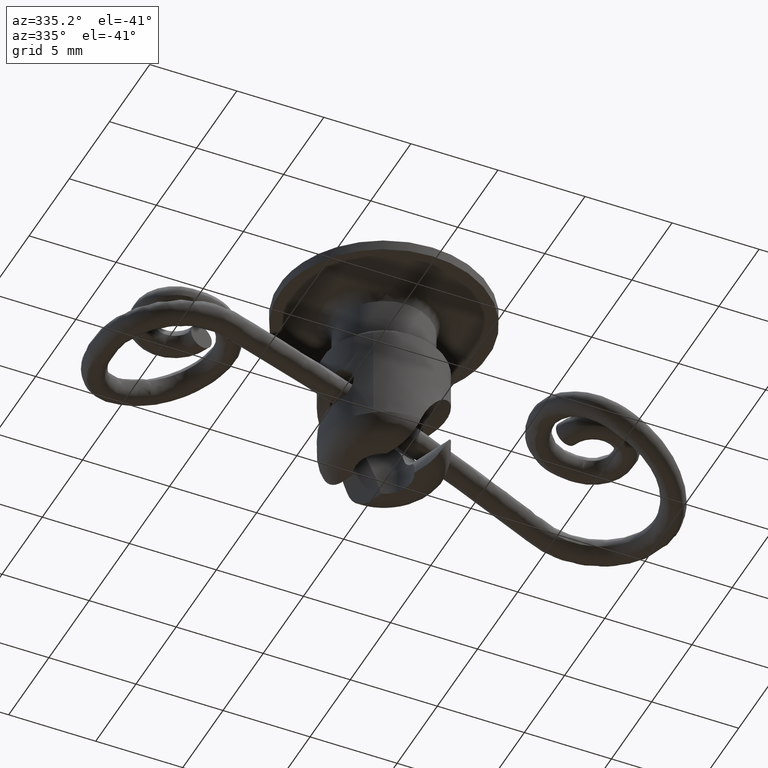
[diagram: clean part render]
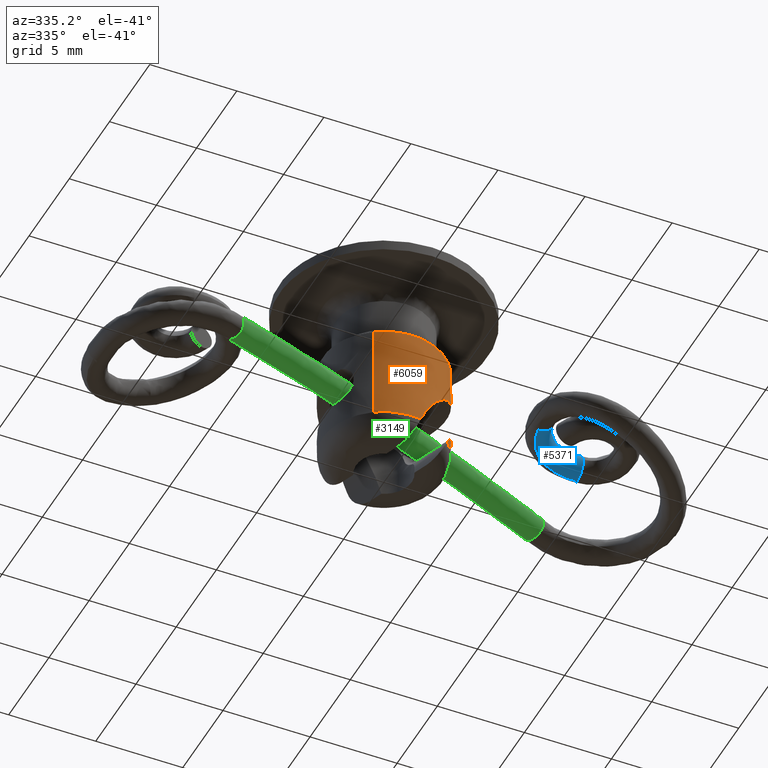
[diagram: same view with three faces highlighted in distinct colors, each labeled with its STEP entity id]
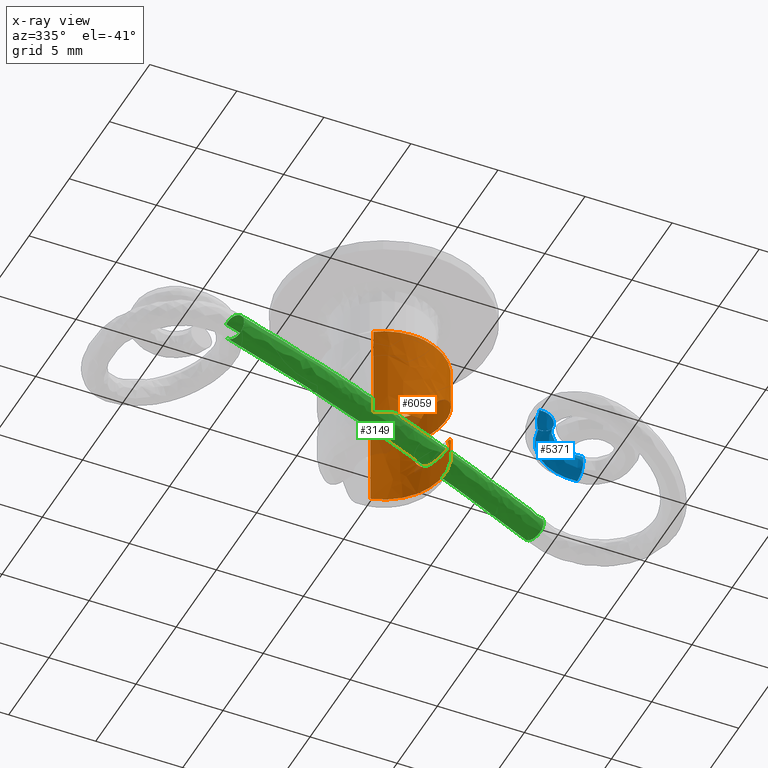
[diagram: x-ray of the same camera — body ghosted, the three highlighted faces saturated]
A machine part, auxiliary view with three faces highlighted in distinct colors.
The next image is the same camera in x-ray (body ghosted, the three faces saturated) — at least one of them is partly hidden behind the body in this view.
Their STEP definitions:

[orange] entity #6059 — the highlighted face is a freeform B-spline surface patch.
#5832=CARTESIAN_POINT('',(-3.408515836683732,0.794996810384028,3.390328074999983));
#5833=CARTESIAN_POINT('',(-3.263399545498517,1.417176887341419,3.390328074999983));
#5834=CARTESIAN_POINT('',(-2.907824455280770,1.947962287806331,3.390328074999983));
#5835=CARTESIAN_POINT('',(-0.959862167474439,4.855786743087101,3.390328074999983));
#5836=CARTESIAN_POINT('',(1.947962287806331,2.907824455280770,3.390328074999983));
#5837=CARTESIAN_POINT('',(4.855786743087101,0.959862167474439,3.390328074999983));
#5838=CARTESIAN_POINT('',(2.907824455280770,-1.947962287806331,3.390328074999983));
#5839=CARTESIAN_POINT('',(-3.408515836683732,0.794996810384028,-2.440643826875002));
#5840=CARTESIAN_POINT('',(-3.263399545498517,1.417176887341419,-2.440643826875002));
#5841=CARTESIAN_POINT('',(-2.907824455280770,1.947962287806331,-2.440643826875002));
#5842=CARTESIAN_POINT('',(-0.959862167474439,4.855786743087101,-2.440643826875002));
#5843=CARTESIAN_POINT('',(1.947962287806331,2.907824455280770,-2.440643826875001));
#5844=CARTESIAN_POINT('',(4.855786743087101,0.959862167474439,-2.440643826875000));
#5845=CARTESIAN_POINT('',(2.907824455280770,-1.947962287806331,-2.440643826875001));
#5853=(BOUNDED_SURFACE()B_SPLINE_SURFACE(2,1,((#5832,#5839),(#5833,#5840),(#5834,#5841),(#5835,#5842),(#5836,#5843),(#5837,#5844),(#5838,#5845)),.UNSPECIFIED.,.F.,.F.,.U.)B_SPLINE_SURFACE_WITH_KNOTS((3,2,2,3),(2,2),(0.0,1.391757577381336,7.190747483136899,12.989737388892459),(0.0,5.830971901874984),.UNSPECIFIED.)GEOMETRIC_REPRESENTATION_ITEM()RATIONAL_B_SPLINE_SURFACE(((0.893152553776853,0.893152553776853),(0.929705627484771,0.929705627484771),(1.0,1.0),(0.707106781186548,0.707106781186548),(1.0,1.0),(0.707106781186548,0.707106781186548),(1.0,1.0)))REPRESENTATION_ITEM('')SURFACE());
#5854=CARTESIAN_POINT('',(-3.408515846239265,0.794996812636851,3.251577999999965));
#5855=VERTEX_POINT('',#5854);
#5856=CARTESIAN_POINT('',(3.500000039059999,2.046831E-016,3.251577999999983));
#5857=VERTEX_POINT('',#5856);
#5858=CARTESIAN_POINT('',(-3.408515846239265,0.794996812636851,3.251577999999965));
#5859=CARTESIAN_POINT('',(-2.777605207691879,3.500000039269895,3.251577999999964));
#5860=CARTESIAN_POINT('',(0.0,3.500000039269895,3.251577999999965));
#5861=CARTESIAN_POINT('',(3.500000039269896,3.500000039269896,3.251577999999965));
#5862=CARTESIAN_POINT('',(3.500000039059999,2.046831E-016,3.251577999999983));
#5870=(BOUNDED_CURVE()B_SPLINE_CURVE(2,(#5858,#5859,#5860,#5861,#5862),.UNSPECIFIED.,.F.,.U.)B_SPLINE_CURVE_WITH_KNOTS((3,2,3),(0.038834074144333,0.250000000000000,0.500000000000000),.UNSPECIFIED.)CURVE()GEOMETRIC_REPRESENTATION_ITEM()RATIONAL_B_SPLINE_CURVE((0.923140758979486,0.752603729089643,1.0,0.707106781186548,1.0))REPRESENTATION_ITEM(''));
#5871=EDGE_CURVE('',#5855,#5857,#5870,.T.);
#5872=ORIENTED_EDGE('',*,*,#5871,.T.);
#5873=CARTESIAN_POINT('',(2.907825412374815,-1.947960876613850,3.251577999999967));
#5874=VERTEX_POINT('',#5873);
#5875=CARTESIAN_POINT('',(3.500000039059999,2.046831E-016,3.251577999999983));
#5876=CARTESIAN_POINT('',(3.500000039131653,-1.063990148705424,3.251577999999977));
#5877=CARTESIAN_POINT('',(2.907825412374815,-1.947960876613850,3.251577999999967));
#5885=(BOUNDED_CURVE()B_SPLINE_CURVE(2,(#5875,#5876,#5877),.UNSPECIFIED.,.F.,.U.)B_SPLINE_CURVE_WITH_KNOTS((3,3),(0.500000000000000,0.595459053685840),.UNSPECIFIED.)CURVE()GEOMETRIC_REPRESENTATION_ITEM()RATIONAL_B_SPLINE_CURVE((1.0,0.888162762004273,0.861732539255827))REPRESENTATION_ITEM(''));
#5886=EDGE_CURVE('',#5857,#5874,#5885,.T.);
#5887=ORIENTED_EDGE('',*,*,#5886,.T.);
#5888=CARTESIAN_POINT('',(2.907823712721256,-1.947963380968242,-2.298425000000000));
#5889=VERTEX_POINT('',#5888);
#5890=CARTESIAN_POINT('',(2.907825412374815,-1.947960876613850,3.251577999999967));
#5891=CARTESIAN_POINT('',(2.907823712721256,-1.947963380968242,-2.298425000000000));
#5892=QUASI_UNIFORM_CURVE('',1,(#5890,#5891),.UNSPECIFIED.,.F.,.U.);
#5893=EDGE_CURVE('',#5874,#5889,#5892,.T.);
#5894=ORIENTED_EDGE('',*,*,#5893,.T.);
#5895=CARTESIAN_POINT('',(3.459897316747310,0.528309279692622,-2.298425000000000));
#5896=VERTEX_POINT('',#5895);
#5897=CARTESIAN_POINT('',(3.459897316747310,0.528309279692622,-2.298425000000000));
#5898=CARTESIAN_POINT('',(3.665345662768366,-0.817171948561412,-2.298425000000000));
#5899=CARTESIAN_POINT('',(2.907823712721255,-1.947963380968242,-2.298425000000000));
#5907=(BOUNDED_CURVE()B_SPLINE_CURVE(2,(#5897,#5898,#5899),.UNSPECIFIED.,.F.,.U.)B_SPLINE_CURVE_WITH_KNOTS((3,3),(0.0,0.297432083567878),.UNSPECIFIED.)CURVE()GEOMETRIC_REPRESENTATION_ITEM()RATIONAL_B_SPLINE_CURVE((1.0,0.889178765330573,0.910204693586316))REPRESENTATION_ITEM(''));
#5908=EDGE_CURVE('',#5896,#5889,#5907,.T.);
#5909=ORIENTED_EDGE('',*,*,#5908,.F.);
#5910=CARTESIAN_POINT('',(-1.254288176771206,3.267531378127195,1.351574999995246));
#5911=VERTEX_POINT('',#5910);
#5912=CARTESIAN_POINT('',(-1.254288176771206,3.267531378127195,1.351574999995246));
#5913=CARTESIAN_POINT('',(-1.101160005406765,3.326311794487662,1.351574998837264));
#5914=CARTESIAN_POINT('',(-0.945762923950141,3.373675377215122,1.349288494566302));
#5915=CARTESIAN_POINT('',(-0.630633866917499,3.446513308409384,1.339913747538645));
#5916=CARTESIAN_POINT('',(-0.470901100661854,3.471984132491330,1.332827274565041));
#5917=CARTESIAN_POINT('',(-0.228032611613191,3.493509216653556,1.317601414292670));
#5918=CARTESIAN_POINT('',(-0.146192181078326,3.497894007021392,1.311721623021134));
#5919=CARTESIAN_POINT('',(0.016684825331217,3.500907918636005,1.298294048865736));
#5920=CARTESIAN_POINT('',(0.097661381558418,3.499565850793191,1.290759077124677));
#5921=CARTESIAN_POINT('',(0.339192328174756,3.487254465925414,1.265360531103398));
#5922=CARTESIAN_POINT('',(0.498356029403914,3.468031572046396,1.244733748760221));
#5923=CARTESIAN_POINT('',(0.734116231528175,3.423079591665780,1.206421926317352));
#5924=CARTESIAN_POINT('',(0.812203412832257,3.405401099469859,1.192415497843184));
#5925=CARTESIAN_POINT('',(0.967319985446281,3.364628222826869,1.161525164726331));
#5926=CARTESIAN_POINT('',(1.044455501968755,3.341469688333355,1.144598555183151));
#5927=CARTESIAN_POINT('',(1.270181629063231,3.265251309077173,1.089838312734105));
#5928=CARTESIAN_POINT('',(1.414461919028028,3.205160989796881,1.047795469298972));
#5929=CARTESIAN_POINT('',(1.690751086098153,3.068406794372949,0.950297460754401));
#5930=CARTESIAN_POINT('',(1.822783533150525,2.991714083594022,0.894834410800318));
#5931=CARTESIAN_POINT('',(2.074162398018134,2.823250487177357,0.767670321400395));
#5932=CARTESIAN_POINT('',(2.190286065450039,2.733666603910849,0.697587030664217));
#5933=CARTESIAN_POINT('',(2.405163610616871,2.546659411072964,0.543378092234245));
#5934=CARTESIAN_POINT('',(2.503908324413362,2.449224044822806,0.459254466628814));
#5935=CARTESIAN_POINT('',(2.639930954665946,2.298984229476701,0.321658217676691));
#5936=CARTESIAN_POINT('',(2.683294462201880,2.248148310073917,0.273809076138016));
#5937=CARTESIAN_POINT('',(2.765058072308654,2.146786866862252,0.175531771712936));
#5938=CARTESIAN_POINT('',(2.803617932975777,2.096094359954361,0.124955630713278));
#5939=CARTESIAN_POINT('',(2.912899965180591,1.944364600649928,-0.031085920722878));
#5940=CARTESIAN_POINT('',(2.977240711307082,1.843680462941251,-0.140859363842419));
#5941=CARTESIAN_POINT('',(3.091414319336658,1.645076718179377,-0.372018921680366));
#5942=CARTESIAN_POINT('',(3.141371004931514,1.546772127010131,-0.493977660713145));
#5943=CARTESIAN_POINT('',(3.270257197035197,1.264231255342642,-0.869766668325979));
#5944=CARTESIAN_POINT('',(3.329685867914584,1.090532520732842,-1.135235191100540));
#5945=CARTESIAN_POINT('',(3.394380702427332,0.857144701619205,-1.555710809341995));
#5946=CARTESIAN_POINT('',(3.411800479059488,0.783882764392442,-1.699601494543263));
#5947=CARTESIAN_POINT('',(3.440294643041646,0.647477772808494,-1.995074335843939));
#5948=CARTESIAN_POINT('',(3.451255752075076,0.584902884180227,-2.145430863998851));
#5949=CARTESIAN_POINT('',(3.459897316747310,0.528309279692622,-2.298425000000000));
#5950=B_SPLINE_CURVE_WITH_KNOTS('',3,(#5912,#5913,#5914,#5915,#5916,#5917,#5918,#5919,#5920,#5921,#5922,#5923,#5924,#5925,#5926,#5927,#5928,#5929,#5930,#5931,#5932,#5933,#5934,#5935,#5936,#5937,#5938,#5939,#5940,#5941,#5942,#5943,#5944,#5945,#5946,#5947,#5948,#5949),.UNSPECIFIED.,.F.,.U.,(4,2,2,2,2,2,2,2,2,2,2,2,2,2,2,2,2,2,4),(0.0,0.062500000000000,0.125000000000000,0.156250000000000,0.187500000000000,0.250000000000000,0.281250000000000,0.312500000000000,0.375000000000000,0.437500000000000,0.500000000000000,0.562500000000000,0.593750000000000,0.625000000000000,0.687500000000000,0.750000000000000,0.875000000000000,0.937500000000000,1.0),.UNSPECIFIED.);
#5951=EDGE_CURVE('',#5911,#5896,#5950,.T.);
#5952=ORIENTED_EDGE('',*,*,#5951,.F.);
#5953=CARTESIAN_POINT('',(-1.254288176771760,3.267531378128635,-0.748424999979508));
#5954=VERTEX_POINT('',#5953);
#5955=CARTESIAN_POINT('',(-1.254288176771206,3.267531378127195,1.351574999995246));
#5956=CARTESIAN_POINT('',(-1.318640299711025,3.242828904728114,1.351574999998268));
#5957=CARTESIAN_POINT('',(-1.383250974586402,3.215771584575151,1.344614387519887));
#5958=CARTESIAN_POINT('',(-1.506396954860101,3.159958600558465,1.317551416516898));
#5959=CARTESIAN_POINT('',(-1.565593729016680,3.130981213496073,1.297553653347578));
#5960=CARTESIAN_POINT('',(-1.650975952180062,3.086310139844504,1.257724716383986));
#5961=CARTESIAN_POINT('',(-1.678753671642143,3.071272891539915,1.242826640704749));
#5962=CARTESIAN_POINT('',(-1.732041841991305,3.041539432910789,1.210385216263431));
#5963=CARTESIAN_POINT('',(-1.783357944218259,3.011994068942268,1.175167036653601));
#5964=CARTESIAN_POINT('',(-1.830909980153130,2.983034484318199,1.134471816499891));
#5965=CARTESIAN_POINT('',(-1.876617930935489,2.954493396734419,1.090990597774523));
#5966=CARTESIAN_POINT('',(-1.898643808134227,2.940368242062184,1.067731898670564));
#5967=CARTESIAN_POINT('',(-1.960784572628020,2.899616920178816,0.995007552488599));
#5968=CARTESIAN_POINT('',(-1.997313065196738,2.874417824679645,0.942418069378176));
#5969=CARTESIAN_POINT('',(-2.061201929522494,2.828954562550342,0.828988281016511));
#5970=CARTESIAN_POINT('',(-2.088680228950250,2.808587258778213,0.767521782673829));
#5971=CARTESIAN_POINT('',(-2.132297230026054,2.775618131480302,0.641013959846587));
#5972=CARTESIAN_POINT('',(-2.148792456446234,2.762769053247285,0.575543322740722));
#5973=CARTESIAN_POINT('',(-2.165556070135160,2.749621333165620,0.473869182759542));
#5974=CARTESIAN_POINT('',(-2.169803212607415,2.746264165357989,0.439234258750618));
#5975=CARTESIAN_POINT('',(-2.175393391017462,2.741838150162845,0.370340765957732));
#5976=CARTESIAN_POINT('',(-2.178156516593197,2.739640120674820,0.301511781085004));
#5977=CARTESIAN_POINT('',(-2.175389917238075,2.741840883420516,0.232809426688201));
#5978=CARTESIAN_POINT('',(-2.169827390747218,2.746245039391130,0.164170869290252));
#5979=CARTESIAN_POINT('',(-2.165624459311289,2.749567543152300,0.129744173098334));
#5980=CARTESIAN_POINT('',(-2.148793984299284,2.762768157699981,0.027519411720855));
#5981=CARTESIAN_POINT('',(-2.132225849179947,2.775673270947027,-0.038123504226504));
#5982=CARTESIAN_POINT('',(-2.099475276291152,2.800426924964453,-0.133035132337098));
#5983=CARTESIAN_POINT('',(-2.087231015792193,2.809582358412294,-0.164075858512501));
#5984=CARTESIAN_POINT('',(-2.059973358337012,2.829628262674840,-0.224946977636477));
#5985=CARTESIAN_POINT('',(-2.045080296908825,2.840428223134019,-0.254484294229986));
#5986=CARTESIAN_POINT('',(-1.997069258926276,2.874588250348522,-0.339653954551944));
#5987=CARTESIAN_POINT('',(-1.960488800417637,2.899817283224345,-0.392254239855946));
#5988=CARTESIAN_POINT('',(-1.898315917340577,2.940580033635757,-0.464940073162480));
#5989=CARTESIAN_POINT('',(-1.876274716174536,2.954711451940570,-0.488190309709255));
#5990=CARTESIAN_POINT('',(-1.830548118104566,2.983256636980536,-0.531642471626592));
#5991=CARTESIAN_POINT('',(-1.806774993222981,2.997730444536423,-0.551964188713668));
#5992=CARTESIAN_POINT('',(-1.732677365752857,3.041565963581875,-0.608800311456632));
#5993=CARTESIAN_POINT('',(-1.679505055045372,3.071386452818583,-0.641275901954966));
#5994=CARTESIAN_POINT('',(-1.565317319694887,3.131123386445141,-0.694523187942838));
#5995=CARTESIAN_POINT('',(-1.506098569886577,3.160096929461241,-0.714477140384755));
#5996=CARTESIAN_POINT('',(-1.413986631402267,3.201839828247238,-0.734704725707612));
#5997=CARTESIAN_POINT('',(-1.382732750924972,3.215468968139409,-0.739817952053260));
#5998=CARTESIAN_POINT('',(-1.319075315955919,3.242102844819061,-0.746689015856274));
#5999=CARTESIAN_POINT('',(-1.286590396207081,3.255131713908407,-0.748425000002721));
#6000=CARTESIAN_POINT('',(-1.254288176771760,3.267531378128635,-0.748424999979508));
#6001=B_SPLINE_CURVE_WITH_KNOTS('',3,(#5955,#5956,#5957,#5958,#5959,#5960,#5961,#5962,#5963,#5964,#5965,#5966,#5967,#5968,#5969,#5970,#5971,#5972,#5973,#5974,#5975,#5976,#5977,#5978,#5979,#5980,#5981,#5982,#5983,#5984,#5985,#5986,#5987,#5988,#5989,#5990,#5991,#5992,#5993,#5994,#5995,#5996,#5997,#5998,#5999,#6000),.UNSPECIFIED.,.F.,.U.,(4,2,2,2,1,2,2,2,2,2,2,1,2,2,2,2,2,2,2,2,2,2,2,4),(0.0,0.062500000000000,0.125000000000000,0.156250000000000,0.187500000000000,0.218750000000000,0.249999999999999,0.312499999999999,0.374999999999999,0.437499999999999,0.468749999999999,0.499999999999999,0.531249999999999,0.562499999999999,0.624999999999999,0.656249999999999,0.687499999999999,0.749999999999999,0.781249999999999,0.812499999999999,0.874999999999999,0.937500000000000,0.968750000000000,1.0),.UNSPECIFIED.);
#6002=EDGE_CURVE('',#5911,#5954,#6001,.T.);
#6003=ORIENTED_EDGE('',*,*,#6002,.T.);
#6004=CARTESIAN_POINT('',(2.408393904069760,2.539613908222965,-2.298424999999550));
#6005=VERTEX_POINT('',#6004);
#6006=CARTESIAN_POINT('',(-1.254288176771760,3.267531378128635,-0.748424999979508));
#6007=CARTESIAN_POINT('',(-1.080808516791880,3.334124001501087,-0.748425001939531));
#6008=CARTESIAN_POINT('',(-0.904432228796500,3.386078131053088,-0.752768340559637));
#6009=CARTESIAN_POINT('',(-0.546197757697933,3.461963427820624,-0.770973188020519));
#6010=CARTESIAN_POINT('',(-0.364154793346326,3.485897916126325,-0.784838761042103));
#6011=CARTESIAN_POINT('',(0.004642874428761,3.504863968670966,-0.825998395240343));
#6012=CARTESIAN_POINT('',(0.186329054614192,3.499647649452042,-0.852757827695604));
#6013=CARTESIAN_POINT('',(0.454243540887475,3.471559585456168,-0.905762154860508));
#6014=CARTESIAN_POINT('',(0.542774066777624,3.458806394214296,-0.925593577335539));
#6015=CARTESIAN_POINT('',(0.718130024869035,3.426694417015562,-0.970447104463344));
#6016=CARTESIAN_POINT('',(0.805110639590740,3.407293709149539,-0.995518509325471));
#6017=CARTESIAN_POINT('',(1.062214071711321,3.339627988727710,-1.079829795055214));
#6018=CARTESIAN_POINT('',(1.223660688545142,3.283255012670626,-1.146520240950321));
#6019=CARTESIAN_POINT('',(1.450773339446091,3.186225676308139,-1.266046864191130));
#6020=CARTESIAN_POINT('',(1.523961729379245,3.151798840074425,-1.309145527792442));
#6021=CARTESIAN_POINT('',(1.629905350513129,3.097576870987849,-1.379238998355098));
#6022=CARTESIAN_POINT('',(1.664579751756364,3.079072741766248,-1.403511793696544));
#6023=CARTESIAN_POINT('',(1.732633676185897,3.041298282508926,-1.453977483171645));
#6024=CARTESIAN_POINT('',(1.766059490597148,3.021995791700213,-1.480218237642530));
#6025=CARTESIAN_POINT('',(1.927956506824257,2.925025927447131,-1.614784099608831));
#6026=CARTESIAN_POINT('',(2.042402187270057,2.845173649116827,-1.734290780310270));
#6027=CARTESIAN_POINT('',(2.194339954692603,2.727448847067835,-1.932224073603313));
#6028=CARTESIAN_POINT('',(2.241686721720204,2.688540820805871,-2.001318025508653));
#6029=CARTESIAN_POINT('',(2.330139502032304,2.612252094370841,-2.145962405989109));
#6030=CARTESIAN_POINT('',(2.370919568013140,2.575151999832864,-2.220998427570238));
#6031=CARTESIAN_POINT('',(2.408393904069760,2.539613908222965,-2.298424999999550));
#6032=B_SPLINE_CURVE_WITH_KNOTS('',3,(#6006,#6007,#6008,#6009,#6010,#6011,#6012,#6013,#6014,#6015,#6016,#6017,#6018,#6019,#6020,#6021,#6022,#6023,#6024,#6025,#6026,#6027,#6028,#6029,#6030,#6031),.UNSPECIFIED.,.F.,.U.,(4,2,2,2,2,2,2,2,2,2,2,2,4),(0.0,0.125000000000000,0.250000000000000,0.375000000000001,0.437500000000001,0.500000000000001,0.625000000000001,0.687500000000001,0.718750000000001,0.750000000000001,0.875000000000000,0.937500000000000,1.0),.UNSPECIFIED.);
#6033=EDGE_CURVE('',#5954,#6005,#6032,.T.);
#6034=ORIENTED_EDGE('',*,*,#6033,.T.);
#6035=CARTESIAN_POINT('',(-3.408516577332525,0.794993612283438,-2.298425000000000));
#6036=VERTEX_POINT('',#6035);
#6037=CARTESIAN_POINT('',(-3.408516577332526,0.794993612283438,-2.298425000000001));
#6038=CARTESIAN_POINT('',(-3.043946008444381,2.358081354977629,-2.298425000000001));
#6039=CARTESIAN_POINT('',(-1.621558822153698,3.101700660330637,-2.298425000000000));
#6040=CARTESIAN_POINT('',(0.594184845413737,4.260084103880654,-2.298425000000001));
#6041=CARTESIAN_POINT('',(2.408393904069760,2.539613908222965,-2.298424999999550));
#6049=(BOUNDED_CURVE()B_SPLINE_CURVE(2,(#6037,#6038,#6039,#6040,#6041),.UNSPECIFIED.,.F.,.U.)B_SPLINE_CURVE_WITH_KNOTS((3,2,3),(0.156086623273908,0.500000000000000,1.0),.UNSPECIFIED.)CURVE()GEOMETRIC_REPRESENTATION_ITEM()RATIONAL_B_SPLINE_CURVE((0.919996328874314,0.871860141747555,1.0,0.813703294311664,1.0))REPRESENTATION_ITEM(''));
#6050=EDGE_CURVE('',#6036,#6005,#6049,.T.);
#6051=ORIENTED_EDGE('',*,*,#6050,.F.);
#6052=CARTESIAN_POINT('',(-3.408515846239265,0.794996812636851,3.251577999999965));
#6053=CARTESIAN_POINT('',(-3.408516577332525,0.794993612283438,-2.298425000000000));
#6054=QUASI_UNIFORM_CURVE('',1,(#6052,#6053),.UNSPECIFIED.,.F.,.U.);
#6055=EDGE_CURVE('',#5855,#6036,#6054,.T.);
#6056=ORIENTED_EDGE('',*,*,#6055,.F.);
#6057=EDGE_LOOP('',(#5872,#5887,#5894,#5909,#5952,#6003,#6034,#6051,#6056));
#6058=FACE_OUTER_BOUND('',#6057,.T.);
#6059=ADVANCED_FACE('',(#6058),#5853,.T.);

[blue] entity #5371 — the highlighted face is a freeform B-spline surface patch.
#4516=CARTESIAN_POINT('',(9.295467102555802,-0.971743717090011,2.669516267261443));
#4517=VERTEX_POINT('',#4516);
#4518=CARTESIAN_POINT('',(9.228294753914609,-0.973815411083425,2.153595210410650));
#4519=VERTEX_POINT('',#4518);
#4520=CARTESIAN_POINT('',(9.295467102555802,-0.971743717090011,2.669516267261443));
#4521=CARTESIAN_POINT('',(9.299880271755002,-0.972487400019112,2.652448583071706));
#4522=CARTESIAN_POINT('',(9.303664978400203,-0.973171298418577,2.635132041181101));
#4523=CARTESIAN_POINT('',(9.310769519821697,-0.974582560006906,2.595224503148241));
#4524=CARTESIAN_POINT('',(9.313618292064801,-0.975262947150675,2.572569919798601));
#4525=CARTESIAN_POINT('',(9.318722385034599,-0.976957557441317,2.504423520152570));
#4526=CARTESIAN_POINT('',(9.317600407815810,-0.977633152816677,2.458662479667158));
#4527=CARTESIAN_POINT('',(9.306397165667908,-0.978075856353967,2.367033651057734));
#4528=CARTESIAN_POINT('',(9.296503476448088,-0.977838573111624,2.322523405799872));
#4529=CARTESIAN_POINT('',(9.275571741714430,-0.976831124346600,2.257608892196078));
#4530=CARTESIAN_POINT('',(9.267569310254599,-0.976385642925392,2.236282231276608));
#4531=CARTESIAN_POINT('',(9.249453697644256,-0.975268796679295,2.194270277136401));
#4532=CARTESIAN_POINT('',(9.239290414809394,-0.974594018074215,2.173520515957040));
#4533=CARTESIAN_POINT('',(9.228294753914609,-0.973815411083425,2.153595210410650));
#4534=B_SPLINE_CURVE_WITH_KNOTS('',3,(#4520,#4521,#4522,#4523,#4524,#4525,#4526,#4527,#4528,#4529,#4530,#4531,#4532,#4533),.UNSPECIFIED.,.F.,.U.,(4,2,2,2,2,2,4),(0.757299359209755,0.781249999999997,0.812499999999997,0.874999999999998,0.937499999999999,0.968749999999999,1.0),.UNSPECIFIED.);
#4535=EDGE_CURVE('',#4517,#4519,#4534,.T.);
#4563=CARTESIAN_POINT('',(8.534092580468148,-0.884739941163406,3.188872347479170));
#4564=VERTEX_POINT('',#4563);
#4605=CARTESIAN_POINT('',(8.447645594110520,-0.899440837269988,1.816713316246081));
#4606=VERTEX_POINT('',#4605);
#4638=CARTESIAN_POINT('',(8.447645594110520,-0.899440837269988,1.816713316246081));
#4639=CARTESIAN_POINT('',(8.477448087182088,-0.902639878519165,1.809051760965573));
#4640=CARTESIAN_POINT('',(8.507603818521911,-0.905840586226527,1.803368380122192));
#4641=CARTESIAN_POINT('',(8.560491639434492,-0.911392520501117,1.796912607032709));
#4642=CARTESIAN_POINT('',(8.583174385487919,-0.913754281221974,1.795249512343763));
#4643=CARTESIAN_POINT('',(8.628851853439151,-0.918470284847451,1.794182874918210));
#4644=CARTESIAN_POINT('',(8.651965091159193,-0.920836414765951,1.794796491338197));
#4645=CARTESIAN_POINT('',(8.720353718015344,-0.927775778836008,1.800130043337706));
#4646=CARTESIAN_POINT('',(8.764983616029218,-0.932221721271507,1.808325280242047));
#4647=CARTESIAN_POINT('',(8.852424447924168,-0.940772894902815,1.833483510700633));
#4648=CARTESIAN_POINT('',(8.895582259421984,-0.944909836991281,1.850672171009564));
#4649=CARTESIAN_POINT('',(8.976643823813525,-0.952515130504456,1.892368105638294));
#4650=CARTESIAN_POINT('',(9.014935887161547,-0.956022783541921,1.916911419667903));
#4651=CARTESIAN_POINT('',(9.068940091836717,-0.960831772914382,1.959394551662277));
#4652=CARTESIAN_POINT('',(9.086432980665032,-0.962364425735161,1.974585292716629));
#4653=CARTESIAN_POINT('',(9.119574704289340,-0.965215221392421,2.006385292459107));
#4654=CARTESIAN_POINT('',(9.135287416822175,-0.966539272625436,2.023032328279080));
#4655=CARTESIAN_POINT('',(9.164973699704976,-0.968981951314344,2.057840359975224));
#4656=CARTESIAN_POINT('',(9.178940283798742,-0.970099752658111,2.076007437599937));
#4657=CARTESIAN_POINT('',(9.198554399778901,-0.971618605017077,2.104420866667639));
#4658=CARTESIAN_POINT('',(9.204878979873060,-0.972099325471670,2.114098179082703));
#4659=CARTESIAN_POINT('',(9.217035792446279,-0.973004385108959,2.133763511307343));
#4660=CARTESIAN_POINT('',(9.222786772434823,-0.973423476349213,2.143613761354892));
#4661=CARTESIAN_POINT('',(9.228294753914609,-0.973815411083425,2.153595210410650));
#4662=B_SPLINE_CURVE_WITH_KNOTS('',3,(#4638,#4639,#4640,#4641,#4642,#4643,#4644,#4645,#4646,#4647,#4648,#4649,#4650,#4651,#4652,#4653,#4654,#4655,#4656,#4657,#4658,#4659,#4660,#4661),.UNSPECIFIED.,.F.,.U.,(4,2,2,2,2,2,2,2,2,2,2,4),(0.582901016615481,0.624999999999998,0.656249999999998,0.687499999999998,0.749999999999998,0.812499999999999,0.874999999999999,0.906249999999999,0.937500000000000,0.968750000000000,0.984375000000000,1.0),.UNSPECIFIED.);
#4663=EDGE_CURVE('',#4606,#4519,#4662,.T.);
#4749=CARTESIAN_POINT('',(8.534092580468148,-0.884739941163406,3.188872347479170));
#4750=CARTESIAN_POINT('',(8.545131566692124,-0.885854279482743,3.190291527673748));
#4751=CARTESIAN_POINT('',(8.556216503584111,-0.886977790488632,3.191435434346757));
#4752=CARTESIAN_POINT('',(8.612657539628204,-0.892721508291861,3.195828707438138));
#4753=CARTESIAN_POINT('',(8.658982274618015,-0.897512548527968,3.194707874809618));
#4754=CARTESIAN_POINT('',(8.749145047892757,-0.906979618464884,3.183702340481298));
#4755=CARTESIAN_POINT('',(8.793475273558874,-0.911704914086349,3.173906996141255));
#4756=CARTESIAN_POINT('',(8.858826627488600,-0.918780383903069,3.152676621580590));
#4757=CARTESIAN_POINT('',(8.880324326919586,-0.921126862218406,3.144517280385232));
#4758=CARTESIAN_POINT('',(8.922039298323639,-0.925718258774626,3.126325888143408));
#4759=CARTESIAN_POINT('',(8.962685583031153,-0.930230970560021,3.106196073106665));
#4760=CARTESIAN_POINT('',(9.001182692567383,-0.934585919623854,3.082168101854017));
#4761=CARTESIAN_POINT('',(9.038559306403126,-0.938858953160535,3.056107852393750));
#4762=CARTESIAN_POINT('',(9.056782368251716,-0.940965802040559,3.041963987804774));
#4763=CARTESIAN_POINT('',(9.108859156224757,-0.947062501698205,2.997038069699788));
#4764=CARTESIAN_POINT('',(9.140076174302015,-0.950819719339424,2.963996413997803));
#4765=CARTESIAN_POINT('',(9.195991126754596,-0.957764755859916,2.892157413540367));
#4766=CARTESIAN_POINT('',(9.220850899732058,-0.960976495660759,2.852927439224307));
#4767=CARTESIAN_POINT('',(9.262117792539197,-0.966587668822075,2.771494454489880));
#4768=CARTESIAN_POINT('',(9.278760947247889,-0.969014034431838,2.729127071925014));
#4769=CARTESIAN_POINT('',(9.292718740854935,-0.971284777038744,2.679896481641114));
#4770=CARTESIAN_POINT('',(9.294122108365910,-0.971517023625481,2.674717931725384));
#4771=CARTESIAN_POINT('',(9.295467102555802,-0.971743717090011,2.669516267261443));
#4772=B_SPLINE_CURVE_WITH_KNOTS('',3,(#4749,#4750,#4751,#4752,#4753,#4754,#4755,#4756,#4757,#4758,#4759,#4760,#4761,#4762,#4763,#4764,#4765,#4766,#4767,#4768,#4769,#4770,#4771),.UNSPECIFIED.,.F.,.U.,(4,2,2,2,2,1,2,2,2,2,2,4),(0.297145627551672,0.312499999999996,0.374999999999995,0.437499999999994,0.468749999999994,0.499999999999994,0.531249999999993,0.562499999999993,0.624999999999994,0.687499999999995,0.749999999999997,0.757299359209755),.UNSPECIFIED.);
#4773=EDGE_CURVE('',#4564,#4517,#4772,.T.);
#4918=CARTESIAN_POINT('',(12.007528120356151,1.974276624752005,1.822750210561846));
#4919=VERTEX_POINT('',#4918);
#4920=CARTESIAN_POINT('',(12.006316501487071,1.887326518407687,3.194532908494131));
#4921=VERTEX_POINT('',#4920);
#4967=CARTESIAN_POINT('',(8.447645594110520,-0.899440837269988,1.816713316246081));
#4968=CARTESIAN_POINT('',(8.448361817629072,-0.893285331850942,1.816755278687688));
#4969=CARTESIAN_POINT('',(8.449082161388702,-0.887095116116350,1.816797477408996));
#4970=CARTESIAN_POINT('',(8.461719835645022,-0.778508338285481,1.817537706964618));
#4971=CARTESIAN_POINT('',(8.479374106672957,-0.671408695519351,1.818245992107390));
#4972=CARTESIAN_POINT('',(8.524112711777701,-0.464980256118658,1.819566164220650));
#4973=CARTESIAN_POINT('',(8.551508979787419,-0.362908553210311,1.820196780068441));
#4974=CARTESIAN_POINT('',(8.648396816573200,-0.061442566329340,1.821992166185165));
#4975=CARTESIAN_POINT('',(8.732643748329286,0.133195368411753,1.823060185528357));
#4976=CARTESIAN_POINT('',(9.039497452949473,0.687005592967302,1.825816928328750));
#4977=CARTESIAN_POINT('',(9.316298668069807,1.015089903489487,1.827050801961420));
#4978=CARTESIAN_POINT('',(9.975269867554610,1.542699181324803,1.828136544556823));
#4979=CARTESIAN_POINT('',(10.355956252977260,1.741036296168308,1.827985969094435));
#4980=CARTESIAN_POINT('',(10.963478684723100,1.919326857435473,1.826735782453316));
#4981=CARTESIAN_POINT('',(11.171832618656500,1.958961576129134,1.826149861909141));
#4982=CARTESIAN_POINT('',(11.487194002171490,1.987565421709549,1.825033711149783));
#4983=CARTESIAN_POINT('',(11.592787527483370,1.991972801450995,1.824622213654291));
#4984=CARTESIAN_POINT('',(11.801491183650880,1.990495184764644,1.823734457893503));
#4985=CARTESIAN_POINT('',(11.907216209607750,1.984571016622178,1.823246925807047));
#4986=CARTESIAN_POINT('',(12.007528120356151,1.974276624752005,1.822750210561846));
#4987=B_SPLINE_CURVE_WITH_KNOTS('',3,(#4967,#4968,#4969,#4970,#4971,#4972,#4973,#4974,#4975,#4976,#4977,#4978,#4979,#4980,#4981,#4982,#4983,#4984,#4985,#4986),.UNSPECIFIED.,.F.,.U.,(4,2,2,2,2,2,2,2,2,4),(-0.003805575704886,0.0,0.062500000000000,0.125000000000000,0.250000000000000,0.500000000000000,0.750000000000000,0.875000000000000,0.937500000000000,0.998512129858744),.UNSPECIFIED.);
#4988=EDGE_CURVE('',#4606,#4919,#4987,.T.);
#4992=CARTESIAN_POINT('',(8.534092580468148,-0.884739941163406,3.188872347479170));
#4993=CARTESIAN_POINT('',(8.545776557286454,-0.788451935411135,3.189526698467228));
#4994=CARTESIAN_POINT('',(8.562247841250724,-0.690338398596060,3.190174268555586));
#4995=CARTESIAN_POINT('',(8.604837849199779,-0.493821394307820,3.191430985508227));
#4996=CARTESIAN_POINT('',(8.631582233608041,-0.394177420853925,3.192046565918156));
#4997=CARTESIAN_POINT('',(8.726164792638125,-0.099881651159244,3.193799136455237));
#4998=CARTESIAN_POINT('',(8.808407363409870,0.090126938983729,3.194841673259186));
#4999=CARTESIAN_POINT('',(9.107960898777032,0.630765189991523,3.197532597936568));
#5000=CARTESIAN_POINT('',(9.378177282117170,0.951046345646444,3.198736944925538));
#5001=CARTESIAN_POINT('',(10.021472754705069,1.466107175115922,3.199796504557989));
#5002=CARTESIAN_POINT('',(10.393103537132280,1.659727247869332,3.199649331725570));
#5003=CARTESIAN_POINT('',(10.986174792084491,1.833777789955127,3.198428632217478));
#5004=CARTESIAN_POINT('',(11.189572644324130,1.872470006013186,3.197856568275812));
#5005=CARTESIAN_POINT('',(11.497432646068710,1.900393819696322,3.196766853160581));
#5006=CARTESIAN_POINT('',(11.600514469559959,1.904696472912399,3.196365107007456));
#5007=CARTESIAN_POINT('',(11.804595280351350,1.903251785747945,3.195496945234389));
#5008=CARTESIAN_POINT('',(11.907026439217359,1.897551398522519,3.195024854235352));
#5009=CARTESIAN_POINT('',(12.006316501487071,1.887326518407687,3.194532908494131));
#5010=B_SPLINE_CURVE_WITH_KNOTS('',3,(#4992,#4993,#4994,#4995,#4996,#4997,#4998,#4999,#5000,#5001,#5002,#5003,#5004,#5005,#5006,#5007,#5008,#5009),.UNSPECIFIED.,.F.,.U.,(4,2,2,2,2,2,2,2,4),(0.003102453601709,0.062500000000000,0.125000000000000,0.250000000000000,0.500000000000000,0.750000000000000,0.875000000000000,0.937500000000000,0.998719134626766),.UNSPECIFIED.);
#5011=EDGE_CURVE('',#4564,#4921,#5010,.T.);
#5016=CARTESIAN_POINT('',(8.526714400875099,-0.947752938965155,3.188442476942289));
#5017=CARTESIAN_POINT('',(8.707331980629094,-0.968288522658965,3.211686458773709));
#5018=CARTESIAN_POINT('',(8.896402969439910,-0.989265428903178,3.159956962982656));
#5019=CARTESIAN_POINT('',(9.184696231545161,-1.020257653624670,2.935759145664685));
#5020=CARTESIAN_POINT('',(9.282143243158629,-1.030082127166633,2.764671396791895));
#5021=CARTESIAN_POINT('',(9.328616324860713,-1.032840584308260,2.401119839223500));
#5022=CARTESIAN_POINT('',(9.277356221486354,-1.025757581790277,2.210894720202758));
#5023=CARTESIAN_POINT('',(9.054785821809386,-0.998666404569687,1.920952994185702));
#5024=CARTESIAN_POINT('',(8.884846076795331,-0.978825052804458,1.823021799835277));
#5025=CARTESIAN_POINT('',(8.617532058759412,-0.948432388937615,1.788620706724810));
#5026=CARTESIAN_POINT('',(8.528887955030800,-0.938473628048974,1.794737484689946));
#5027=CARTESIAN_POINT('',(8.444199339843102,-0.929068125145375,1.816513059169966));
#5028=CARTESIAN_POINT('',(8.528560526321689,-0.931881353554355,3.188550673408257));
#5029=CARTESIAN_POINT('',(8.709179025169901,-0.952408892761218,3.211794710148682));
#5030=CARTESIAN_POINT('',(8.898250977812584,-0.973377363782373,3.160065271933269));
#5031=CARTESIAN_POINT('',(9.186545712846550,-1.004356699382528,2.935867542590793));
#5032=CARTESIAN_POINT('',(9.283993224486812,-1.014176798395266,2.764779823576122));
#5033=CARTESIAN_POINT('',(9.330466551036214,-1.016933116540582,2.401228280605860));
#5034=CARTESIAN_POINT('',(9.279206190974676,-1.009852362727099,2.211003146235237));
#5035=CARTESIAN_POINT('',(9.056634664635414,-0.982771049630257,1.921061352887556));
#5036=CARTESIAN_POINT('',(8.886694056584050,-0.962937252542653,1.823130106971008));
#5037=CARTESIAN_POINT('',(8.619378678288694,-0.932556494516492,1.788728932595210));
#5038=CARTESIAN_POINT('',(8.530734123087305,-0.922601685007185,1.794845683589631));
#5039=CARTESIAN_POINT('',(8.446045076211927,-0.913199960144897,1.816621232282163));
#5040=CARTESIAN_POINT('',(8.530416952509762,-0.915924739799300,3.188659447786530));
#5041=CARTESIAN_POINT('',(8.711016861517248,-0.936611779886380,3.211902397367414));
#5042=CARTESIAN_POINT('',(8.900069321579586,-0.957747499294418,3.160171819184403));
#5043=CARTESIAN_POINT('',(9.188334272108561,-0.988982392887770,2.935972347952808));
#5044=CARTESIAN_POINT('',(9.285771675232175,-0.998889227823453,2.764884037742887));
#5045=CARTESIAN_POINT('',(9.332240059812101,-1.001687957788288,2.401332205688500));
#5046=CARTESIAN_POINT('',(9.280984896729587,-0.994562618706495,2.211107375209136));
#5047=CARTESIAN_POINT('',(9.058436165895081,-0.967285726986826,1.921166914923866));
#5048=CARTESIAN_POINT('',(8.888513015998559,-0.947302140885152,1.823236689969722));
#5049=CARTESIAN_POINT('',(8.621225150667478,-0.916685321556271,1.788837124590035));
#5050=CARTESIAN_POINT('',(8.532589726580845,-0.906652166598924,1.794954409588012));
#5051=CARTESIAN_POINT('',(8.447909410216198,-0.897175533074128,1.816730468859132));
#5052=CARTESIAN_POINT('',(8.544058985370731,-0.798706639970107,3.189458490465065));
#5053=CARTESIAN_POINT('',(8.724261965003741,-0.822801881784876,3.212678208462750));
#5054=CARTESIAN_POINT('',(8.912898218744070,-0.847511350810165,3.160923270246300));
#5055=CARTESIAN_POINT('',(9.200527206148790,-0.884206985965180,2.936686576501940));
#5056=CARTESIAN_POINT('',(9.297748768624659,-0.895967186512264,2.765585633022830));
#5057=CARTESIAN_POINT('',(9.344111624277899,-0.899672167798861,2.402027623552600));
#5058=CARTESIAN_POINT('',(9.292967422746139,-0.891594133883426,2.211809286966090));
#5059=CARTESIAN_POINT('',(9.070905414596728,-0.860138133512285,1.921897313008055));
#5060=CARTESIAN_POINT('',(8.901355028677699,-0.836953867844757,1.823988905074640));
#5061=CARTESIAN_POINT('',(8.634654618820846,-0.801292909958916,1.789623722437937));
#5062=CARTESIAN_POINT('',(8.546214162242674,-0.789585675938521,1.795752418590783));
#5063=CARTESIAN_POINT('',(8.461720260046377,-0.778508400341399,1.817539388445388));
#5064=CARTESIAN_POINT('',(8.561155427066053,-0.695338961309166,3.190141829005168));
#5065=CARTESIAN_POINT('',(8.740046735226738,-0.728211990665913,3.213302930352135));
#5066=CARTESIAN_POINT('',(8.927307613588850,-0.762125614346523,3.161486528238640));
#5067=CARTESIAN_POINT('',(9.212835023397879,-0.812885332637684,2.937155916691475));
#5068=CARTESIAN_POINT('',(9.309343324819801,-0.829418857394331,2.766023097636725));
#5069=CARTESIAN_POINT('',(9.355357443879719,-0.835457880710457,2.402449501637220));
#5070=CARTESIAN_POINT('',(9.304579914270029,-0.824926191974588,2.212247550076430));
#5071=CARTESIAN_POINT('',(9.084126295695969,-0.782706942360619,1.922407451240405));
#5072=CARTESIAN_POINT('',(8.915807723236419,-0.751279360558939,1.824554090807970));
#5073=CARTESIAN_POINT('',(8.651048587158606,-0.702627277110984,1.790275660814395));
#5074=CARTESIAN_POINT('',(8.563252410267069,-0.686608470087543,1.796433148965150));
#5075=CARTESIAN_POINT('',(8.479374523315856,-0.671408757626803,1.818247647804074));
#5076=CARTESIAN_POINT('',(8.604829723857273,-0.493820347051838,3.191430551048933));
#5077=CARTESIAN_POINT('',(8.781218229499540,-0.538241589489898,3.214517800996525));
#5078=CARTESIAN_POINT('',(8.965854746913280,-0.584264363125688,3.162623960216225));
#5079=CARTESIAN_POINT('',(9.247372116180051,-0.653527041320561,2.938175021151855));
#5080=CARTESIAN_POINT('',(9.342519431166490,-0.676340437893908,2.767002041887545));
#5081=CARTESIAN_POINT('',(9.387868101542509,-0.685450171887238,2.403408808307390));
#5082=CARTESIAN_POINT('',(9.337790207406039,-0.671690413089212,2.213227500300205));
#5083=CARTESIAN_POINT('',(9.120405542820841,-0.615310844257275,1.923477957248370));
#5084=CARTESIAN_POINT('',(8.954437390771322,-0.573038210176853,1.825693951419150));
#5085=CARTESIAN_POINT('',(8.693382402420768,-0.507294771368492,1.791524821496780));
#5086=CARTESIAN_POINT('',(8.606815577800337,-0.485603582210251,1.797718584825632));
#5087=CARTESIAN_POINT('',(8.524113112668436,-0.464980318330741,1.819567767567339));
#5088=CARTESIAN_POINT('',(8.631574272923805,-0.394176377453642,3.192046141843473));
#5089=CARTESIAN_POINT('',(8.806430154112920,-0.444307810823234,3.215098114797280));
#5090=CARTESIAN_POINT('',(8.989459607867358,-0.496318139502163,3.163167283470905));
#5091=CARTESIAN_POINT('',(9.268521370996869,-0.574729890729811,2.938661822256530));
#5092=CARTESIAN_POINT('',(9.362835264717450,-0.600648466831614,2.767469659442225));
#5093=CARTESIAN_POINT('',(9.407776432496631,-0.611276562127953,2.403867045458565));
#5094=CARTESIAN_POINT('',(9.358126966361979,-0.595920635289641,2.213695598360990));
#5095=CARTESIAN_POINT('',(9.142621612214750,-0.532539280572321,1.923989311565300));
#5096=CARTESIAN_POINT('',(8.978092770122050,-0.484904144472933,1.826238434717950));
#5097=CARTESIAN_POINT('',(8.719306065962092,-0.410709623085922,1.792121514746508));
#5098=CARTESIAN_POINT('',(8.633492051872295,-0.386213637589254,1.798332605834826));
#5099=CARTESIAN_POINT('',(8.551509372496195,-0.362908615476741,1.820198356223591));
#5100=CARTESIAN_POINT('',(8.726157342422912,-0.099880619712295,3.193798744574638));
#5101=CARTESIAN_POINT('',(8.895593043201199,-0.166876946457880,3.216750283029955));
#5102=CARTESIAN_POINT('',(9.072939056529659,-0.236571356703068,3.164714138669110));
#5103=CARTESIAN_POINT('',(9.343316471204648,-0.342004648813601,2.940047757423440));
#5104=CARTESIAN_POINT('',(9.434682933661511,-0.377094290103413,2.768800978531300));
#5105=CARTESIAN_POINT('',(9.478182938897861,-0.392206828240693,2.405171658253450));
#5106=CARTESIAN_POINT('',(9.430048615922059,-0.372136664606269,2.215028285392265));
#5107=CARTESIAN_POINT('',(9.221189498615450,-0.288075728891251,1.925445150224630));
#5108=CARTESIAN_POINT('',(9.061750823790412,-0.224602589990660,1.827788592421430));
#5109=CARTESIAN_POINT('',(8.810985986638674,-0.125448026407227,1.793820315507172));
#5110=CARTESIAN_POINT('',(8.727834314253478,-0.092668151131023,1.800080739169478));
#5111=CARTESIAN_POINT('',(8.648397183926418,-0.061442628764189,1.821993658074864));
#5112=CARTESIAN_POINT('',(8.808400275576084,0.090127961945020,3.194841304233133));
#5113=CARTESIAN_POINT('',(8.973122962066869,0.012243016493443,3.217733097863560));
#5114=CARTESIAN_POINT('',(9.145527044835321,-0.068868912756220,3.165634306600030));
#5115=CARTESIAN_POINT('',(9.408353138060930,-0.191748346696201,2.940872199842030));
#5116=CARTESIAN_POINT('',(9.497156709402670,-0.232759180388069,2.769592931801105));
#5117=CARTESIAN_POINT('',(9.539403562006219,-0.250767051499464,2.405947724855360));
#5118=CARTESIAN_POINT('',(9.492586694216390,-0.227653199461069,2.215821052302275));
#5119=CARTESIAN_POINT('',(9.289506672910299,-0.130240741076280,1.926311175505755));
#5120=CARTESIAN_POINT('',(9.134494052192601,-0.056541984353091,1.828710724653210));
#5121=CARTESIAN_POINT('',(8.890704476186105,0.058727734915274,1.794830870080048));
#5122=CARTESIAN_POINT('',(8.809867792968131,0.096856005799130,1.801120639896990));
#5123=CARTESIAN_POINT('',(8.732644097695470,0.133195305857429,1.823061617640801));
#5124=CARTESIAN_POINT('',(9.107954943573011,0.630766186430732,3.197532300342818));
#5125=CARTESIAN_POINT('',(9.255511351800291,0.521899465952811,3.220269884029035));
#5126=CARTESIAN_POINT('',(9.409915363165410,0.408300859260945,3.168009392099085));
#5127=CARTESIAN_POINT('',(9.645237143914951,0.235781283791155,2.943000203934935));
#5128=CARTESIAN_POINT('',(9.724705841139540,0.177922661698865,2.771637076642045));
#5129=CARTESIAN_POINT('',(9.762388278542900,0.151676579250278,2.407950863709670));
#5130=CARTESIAN_POINT('',(9.720369976576981,0.183450737879009,2.217867296930940));
#5131=CARTESIAN_POINT('',(9.538339209866541,0.318852747590823,1.928546510317770));
#5132=CARTESIAN_POINT('',(9.399447660133379,0.421646815748986,1.831090879488005));
#5133=CARTESIAN_POINT('',(9.181064175957257,0.582769562056246,1.797439255632662));
#5134=CARTESIAN_POINT('',(9.108659412245245,0.636115814469300,1.803804772085286));
#5135=CARTESIAN_POINT('',(9.039497746133023,0.687005530039796,1.825818173726500));
#5136=CARTESIAN_POINT('',(9.378172141581814,0.951047323009069,3.198736698711030));
#5137=CARTESIAN_POINT('',(9.510243489212790,0.823826597500777,3.221405263306905));
#5138=CARTESIAN_POINT('',(9.648410297189090,0.690982457076165,3.169072399623500));
#5139=CARTESIAN_POINT('',(9.858921430463420,0.489055401251097,2.943952626038370));
#5140=CARTESIAN_POINT('',(9.929969463417560,0.421215918881031,2.772551966042350));
#5141=CARTESIAN_POINT('',(9.963534467862139,0.390089388939379,2.408847399887455));
#5142=CARTESIAN_POINT('',(9.925844751669899,0.426994013332355,2.218783125604800));
#5143=CARTESIAN_POINT('',(9.762801702902300,0.584901508364478,1.929546969037250));
#5144=CARTESIAN_POINT('',(9.638452362146930,0.704932011064861,1.832156154619910));
#5145=CARTESIAN_POINT('',(9.442986767653085,0.893218684817036,1.798606679017760));
#5146=CARTESIAN_POINT('',(9.378188126726656,0.955580267857769,1.805006097087084));
#5147=CARTESIAN_POINT('',(9.316298920889370,1.015089840293871,1.827051913215414));
#5148=CARTESIAN_POINT('',(10.021469247636910,1.466108114228669,3.199796361362425));
#5149=CARTESIAN_POINT('',(10.116675832996680,1.309371362420458,3.222404201185595));
#5150=CARTESIAN_POINT('',(10.216187264323301,1.145577470931922,3.170007662758500));
#5151=CARTESIAN_POINT('',(10.367632478798599,0.896358683798249,2.944790592539720));
#5152=CARTESIAN_POINT('',(10.418633687651500,0.812468435753831,2.773356909791985));
#5153=CARTESIAN_POINT('',(10.442396393199960,0.773493350607990,2.409636194965020));
#5154=CARTESIAN_POINT('',(10.415011563130120,0.818648515560780,2.219588894202685));
#5155=CARTESIAN_POINT('',(10.297171889120060,1.012748208686408,1.930427196596530));
#5156=CARTESIAN_POINT('',(10.207442682179300,1.160497503418776,1.833093409114005));
#5157=CARTESIAN_POINT('',(10.066536935846830,1.392467896095021,1.799633806175972));
#5158=CARTESIAN_POINT('',(10.019845938363369,1.469327501945275,1.806063051809915));
#5159=CARTESIAN_POINT('',(9.975270039527947,1.542699117592182,1.828137387130321));
#5160=CARTESIAN_POINT('',(10.393100845185071,1.659728167894903,3.199649239937772));
#5161=CARTESIAN_POINT('',(10.467010725702320,1.491895846803510,3.222265510793385));
#5162=CARTESIAN_POINT('',(10.544191011966159,1.316467417839860,3.169877812730755));
#5163=CARTESIAN_POINT('',(10.661513935338920,1.049470851724132,2.944674250353270));
#5164=CARTESIAN_POINT('',(10.700934117510920,0.959546834761888,2.773245151902985));
#5165=CARTESIAN_POINT('',(10.719034025887300,0.917621312036610,2.409526677983025));
#5166=CARTESIAN_POINT('',(10.697602295883240,0.965877976629274,2.219477020031440));
#5167=CARTESIAN_POINT('',(10.605876508414200,1.173582899897510,1.930304983705875));
#5168=CARTESIAN_POINT('',(10.536147283004320,1.331752146401522,1.832963278357190));
#5169=CARTESIAN_POINT('',(10.426760659839040,1.580143981616782,1.799491197490883));
#5170=CARTESIAN_POINT('',(10.390530415706710,1.662453638994418,1.805916301918872));
#5171=CARTESIAN_POINT('',(10.355956384650380,1.741036232168001,1.827986677736097));
#5172=CARTESIAN_POINT('',(10.986173234076100,1.833778683427963,3.198428611944542));
#5173=CARTESIAN_POINT('',(11.026096536829201,1.655972250200840,3.221114832183050));
#5174=CARTESIAN_POINT('',(11.067639415380240,1.470085201796406,3.168800480900290));
#5175=CARTESIAN_POINT('',(11.130507884799760,1.187107653571766,2.943708992937015));
#5176=CARTESIAN_POINT('',(11.151446342151040,1.091759682155612,2.772317931984710));
#5177=CARTESIAN_POINT('',(11.160509178743640,1.047181862063558,2.408618056455175));
#5178=CARTESIAN_POINT('',(11.148577750553500,1.098226516146464,2.218548844869880));
#5179=CARTESIAN_POINT('',(11.098526067556740,1.318161506615804,1.929291036225775));
#5180=CARTESIAN_POINT('',(11.060714022640999,1.485697520122678,1.831883640364335));
#5181=CARTESIAN_POINT('',(11.001627534566280,1.748851041298817,1.798308034411344));
#5182=CARTESIAN_POINT('',(10.982091198980960,1.836059902984689,1.804698780375400));
#5183=CARTESIAN_POINT('',(10.963478760398139,1.919326793063210,1.826736304993631));
#5184=CARTESIAN_POINT('',(11.189571449237500,1.872470890987710,3.197856570891500));
#5185=CARTESIAN_POINT('',(11.217838824263000,1.692447170087260,3.220575572529180));
#5186=CARTESIAN_POINT('',(11.247159610606399,1.504235122105025,3.168295594856370));
#5187=CARTESIAN_POINT('',(11.291352551217599,1.217704920114980,2.943256630094195));
#5188=CARTESIAN_POINT('',(11.305952572750060,1.121151171158982,2.771883395304065));
#5189=CARTESIAN_POINT('',(11.311916078673020,1.075983715276086,2.408192235999185));
#5190=CARTESIAN_POINT('',(11.303242840791439,1.127648141986694,2.218113860803770));
#5191=CARTESIAN_POINT('',(11.267483571135701,1.350301915289282,1.928815855562260));
#5192=CARTESIAN_POINT('',(11.240617738961800,1.519920197191705,1.831377674237190));
#5193=CARTESIAN_POINT('',(11.198782023924309,1.786355304124356,1.797753551813427));
#5194=CARTESIAN_POINT('',(11.184970977944470,1.874653280716227,1.804128195860437));
#5195=CARTESIAN_POINT('',(11.171832676420680,1.958961511637902,1.826150324925374));
#5196=CARTESIAN_POINT('',(11.497431962402301,1.900394692695240,3.196766888030342));
#5197=CARTESIAN_POINT('',(11.508057099458540,1.718770780751155,3.219548335039845));
#5198=CARTESIAN_POINT('',(11.518878708085101,1.528880798583320,3.167333835787375));
#5199=CARTESIAN_POINT('',(11.534804641780680,1.239786657300694,2.942394922749550));
#5200=CARTESIAN_POINT('',(11.539810897614100,1.142362691546826,2.771055645161920));
#5201=CARTESIAN_POINT('',(11.541083294927160,1.096769660030492,2.407381089619600));
#5202=CARTESIAN_POINT('',(11.537341601197101,1.148881348529080,2.217285258740560));
#5203=CARTESIAN_POINT('',(11.523215109038400,1.373497206291590,1.927910683040180));
#5204=CARTESIAN_POINT('',(11.512917299185499,1.544618228678295,1.830413858448100));
#5205=CARTESIAN_POINT('',(11.497192096342150,1.813421618355548,1.796697316874040));
#5206=CARTESIAN_POINT('',(11.492046763505330,1.902505598668256,1.803041288328256));
#5207=CARTESIAN_POINT('',(11.487194034714230,1.987565357050789,1.825034090346238));
#5208=CARTESIAN_POINT('',(11.600513950892269,1.904697342047645,3.196365152283300));
#5209=CARTESIAN_POINT('',(11.605231877217440,1.722826865655810,3.219169621160780));
#5210=CARTESIAN_POINT('',(11.609859342780860,1.532678337031400,3.166979261981940));
#5211=CARTESIAN_POINT('',(11.616320537172840,1.243189122425180,2.942077235245100));
#5212=CARTESIAN_POINT('',(11.618114479047239,1.145631062599726,2.770750476744785));
#5213=CARTESIAN_POINT('',(11.617816135135140,1.099972441926510,2.407082042573280));
#5214=CARTESIAN_POINT('',(11.615725686500619,1.152153039226902,2.216979776283545));
#5215=CARTESIAN_POINT('',(11.608842570101960,1.377071213237830,1.927576971208145));
#5216=CARTESIAN_POINT('',(11.604092287417140,1.548423781458240,1.830058526483510));
#5217=CARTESIAN_POINT('',(11.597109756455890,1.817592086518178,1.796307912544903));
#5218=CARTESIAN_POINT('',(11.594865993979290,1.906797178420635,1.802640575867860));
#5219=CARTESIAN_POINT('',(11.592787551892140,1.991972736738207,1.824622565818725));
#5220=CARTESIAN_POINT('',(11.806707929848351,1.903237690586328,3.195488022453239));
#5221=CARTESIAN_POINT('',(11.799609715706159,1.721450866765430,3.218342756125860));
#5222=CARTESIAN_POINT('',(11.791847092096900,1.531390042856940,3.166205103187110));
#5223=CARTESIAN_POINT('',(11.779376051764361,1.242034821081554,2.941383612188550));
#5224=CARTESIAN_POINT('',(11.774744429621199,1.144522224265682,2.770084187261390));
#5225=CARTESIAN_POINT('',(11.771304143530420,1.098885792929290,2.406429118233160));
#5226=CARTESIAN_POINT('',(11.772516664289000,1.151042979918614,2.216312801213205));
#5227=CARTESIAN_POINT('',(11.780122405373460,1.375858541559740,1.926848361566230));
#5228=CARTESIAN_POINT('',(11.786468790818100,1.547132539591135,1.829282712535505));
#5229=CARTESIAN_POINT('',(11.796974147748561,1.816177038846037,1.795457706699961));
#5230=CARTESIAN_POINT('',(11.800534370478040,1.905341043900258,1.801765680412392));
#5231=CARTESIAN_POINT('',(11.804005309352981,1.990477320062578,1.823724063832410));
#5232=CARTESIAN_POINT('',(11.911313285077449,1.897311539954748,3.195005155920212));
#5233=CARTESIAN_POINT('',(11.895362831591120,1.716164698343970,3.217901763936310));
#5234=CARTESIAN_POINT('',(11.878317985789160,1.526774934335185,3.165808019256535));
#5235=CARTESIAN_POINT('',(11.851663575205700,1.238445085834314,2.941053620598395));
#5236=CARTESIAN_POINT('',(11.842218143825900,1.141280488316144,2.769776966609035));
#5237=CARTESIAN_POINT('',(11.836424021854560,1.095814189350810,2.406133031791510));
#5238=CARTESIAN_POINT('',(11.840111010496820,1.147792461766888,2.216005009481815));
#5239=CARTESIAN_POINT('',(11.858571295206140,1.371823253640052,1.926489223646140));
#5240=CARTESIAN_POINT('',(11.873230915928200,1.542496228957735,1.828884249897910));
#5241=CARTESIAN_POINT('',(11.896837587087910,1.810593554541697,1.794997270033960));
#5242=CARTESIAN_POINT('',(11.904745952750879,1.899443207835372,1.801284675447359));
#5243=CARTESIAN_POINT('',(11.912374294069091,1.984278923697150,1.823223392853132));
#5244=CARTESIAN_POINT('',(12.035592705248961,1.884259003547424,3.194387551488330));
#5245=CARTESIAN_POINT('',(12.016028672958790,1.703491389225233,3.217302114992640));
#5246=CARTESIAN_POINT('',(11.995194724642801,1.514499269410850,3.165227197934412));
#5247=CARTESIAN_POINT('',(11.962750510203730,1.226777020467252,2.940501568108539));
#5248=CARTESIAN_POINT('',(11.951340030125710,1.129818636815467,2.769234678176169));
#5249=CARTESIAN_POINT('',(11.944585046625759,1.084453158807318,2.405595517654965));
#5250=CARTESIAN_POINT('',(11.949282139262230,1.136325417475566,2.215462476185332));
#5251=CARTESIAN_POINT('',(11.972173364422099,1.359891192156506,1.925924673392183));
#5252=CARTESIAN_POINT('',(11.990226536610290,1.530208027527860,1.828302837422966));
#5253=CARTESIAN_POINT('',(12.019181304399780,1.797744096724700,1.794389283436622));
#5254=CARTESIAN_POINT('',(12.028864628551410,1.886407477664752,1.800667869276162));
#5255=CARTESIAN_POINT('',(12.038190066071721,1.971065093121886,1.822598154002484));
#5256=CARTESIAN_POINT('',(12.058319999479711,1.881870760078416,3.194274599146752));
#5257=CARTESIAN_POINT('',(12.038717242407850,1.701107181418685,3.217189354863533));
#5258=CARTESIAN_POINT('',(12.017842688299829,1.512119293093176,3.165114639352795));
#5259=CARTESIAN_POINT('',(11.985336427586271,1.224403509546065,2.940389317491789));
#5260=CARTESIAN_POINT('',(11.973904889096360,1.127447319989059,2.769122532080398));
#5261=CARTESIAN_POINT('',(11.967139608476909,1.082082914107385,2.405483422662340));
#5262=CARTESIAN_POINT('',(11.971847525813709,1.133954044205352,2.215350327460193));
#5263=CARTESIAN_POINT('',(11.994786234922019,1.357514869705610,1.925812288972950));
#5264=CARTESIAN_POINT('',(12.012875773960120,1.527827914942789,1.828190272493507));
#5265=CARTESIAN_POINT('',(12.041887854426511,1.795358011359188,1.794276434032713));
#5266=CARTESIAN_POINT('',(12.051590199858129,1.884019410062853,1.800554925459478));
#5267=CARTESIAN_POINT('',(12.060933824253571,1.968675130280283,1.822485119914930));
#5268=CARTESIAN_POINT('',(12.080936293000960,1.879493542107229,3.194162193800876));
#5269=CARTESIAN_POINT('',(12.061513288549390,1.698711071761319,3.217076056144873));
#5270=CARTESIAN_POINT('',(12.040827218236100,1.509703374129999,3.165000403867388));
#5271=CARTESIAN_POINT('',(12.008608963475741,1.221957321700285,2.940273650613461));
#5272=CARTESIAN_POINT('',(11.997275173651850,1.124990858957200,2.769006379390174));
#5273=CARTESIAN_POINT('',(11.990557689716880,1.079621429783588,2.405367032422402));
#5274=CARTESIAN_POINT('',(11.995215360748150,1.131497840708285,2.215234186945229));
#5275=CARTESIAN_POINT('',(12.017933658622670,1.355081831083561,1.925697243904880));
#5276=CARTESIAN_POINT('',(12.035854389988010,1.525412617723601,1.828076066401780));
#5277=CARTESIAN_POINT('',(12.064600436576351,1.792970673835545,1.794163550132706));
#5278=CARTESIAN_POINT('',(12.074214489087639,1.881641351968139,1.800442480376377));
#5279=CARTESIAN_POINT('',(12.083473693720840,1.966305944550055,1.822373094399073));
#5280=B_SPLINE_SURFACE_WITH_KNOTS('',3,3,((#5016,#5028,#5040,#5052,#5064,#5076,#5088,#5100,#5112,#5124,#5136,#5148,#5160,#5172,#5184,#5196,#5208,#5220,#5232,#5244,#5256,#5268),(#5017,#5029,#5041,#5053,#5065,#5077,#5089,#5101,#5113,#5125,#5137,#5149,#5161,#5173,#5185,#5197,#5209,#5221,#5233,#5245,#5257,#5269),(#5018,#5030,#5042,#5054,#5066,#5078,#5090,#5102,#5114,#5126,#5138,#5150,#5162,#5174,#5186,#5198,#5210,#5222,#5234,#5246,#5258,#5270),(#5019,#5031,#5043,#5055,#5067,#5079,#5091,#5103,#5115,#5127,#5139,#5151,#5163,#5175,#5187,#5199,#5211,#5223,#5235,#5247,#5259,#5271),(#5020,#5032,#5044,#5056,#5068,#5080,#5092,#5104,#5116,#5128,#5140,#5152,#5164,#5176,#5188,#5200,#5212,#5224,#5236,#5248,#5260,#5272),(#5021,#5033,#5045,#5057,#5069,#5081,#5093,#5105,#5117,#5129,#5141,#5153,#5165,#5177,#5189,#5201,#5213,#5225,#5237,#5249,#5261,#5273),(#5022,#5034,#5046,#5058,#5070,#5082,#5094,#5106,#5118,#5130,#5142,#5154,#5166,#5178,#5190,#5202,#5214,#5226,#5238,#5250,#5262,#5274),(#5023,#5035,#5047,#5059,#5071,#5083,#5095,#5107,#5119,#5131,#5143,#5155,#5167,#5179,#5191,#5203,#5215,#5227,#5239,#5251,#5263,#5275),(#5024,#5036,#5048,#5060,#5072,#5084,#5096,#5108,#5120,#5132,#5144,#5156,#5168,#5180,#5192,#5204,#5216,#5228,#5240,#5252,#5264,#5276),(#5025,#5037,#5049,#5061,#5073,#5085,#5097,#5109,#5121,#5133,#5145,#5157,#5169,#5181,#5193,#5205,#5217,#5229,#5241,#5253,#5265,#5277),(#5026,#5038,#5050,#5062,#5074,#5086,#5098,#5110,#5122,#5134,#5146,#5158,#5170,#5182,#5194,#5206,#5218,#5230,#5242,#5254,#5266,#5278),(#5027,#5039,#5051,#5063,#5075,#5087,#5099,#5111,#5123,#5135,#5147,#5159,#5171,#5183,#5195,#5207,#5219,#5231,#5243,#5255,#5267,#5279)),.UNSPECIFIED.,.F.,.F.,.U.,(4,2,2,2,2,4),(4,2,2,2,2,2,2,2,2,2,4),(0.0,0.549783891221763,1.099567782443525,1.649351673665288,2.199135564887051,2.463031832673497),(0.0,0.050956038796991,0.370682321767656,0.690408604738322,1.329861170679652,2.608766302562313,3.887671434444974,4.527124000386305,4.846850283356971,5.166576566327636,5.239370855233978),.UNSPECIFIED.);
#5281=CARTESIAN_POINT('',(11.999847026502639,1.830425686100250,1.800967623834100));
#5282=VERTEX_POINT('',#5281);
#5283=CARTESIAN_POINT('',(11.999847026502639,1.830425686100250,1.800967623834100));
#5284=CARTESIAN_POINT('',(12.001044346801850,1.853158908870973,1.802044718293083));
#5285=CARTESIAN_POINT('',(12.002270648971241,1.876310199814044,1.804276872949729));
#5286=CARTESIAN_POINT('',(12.004698825617050,1.921815720000107,1.810923799360456));
#5287=CARTESIAN_POINT('',(12.005904049594800,1.944251172098761,1.815323349852863));
#5288=CARTESIAN_POINT('',(12.007243329435459,1.969016663781160,1.821410114977250));
#5289=CARTESIAN_POINT('',(12.007385787516300,1.971648836823890,1.822072710798209));
#5290=CARTESIAN_POINT('',(12.007528120356151,1.974276624752005,1.822750210561846));
#5291=B_SPLINE_CURVE_WITH_KNOTS('',3,(#5283,#5284,#5285,#5286,#5287,#5288,#5289,#5290),.UNSPECIFIED.,.F.,.U.,(4,2,2,4),(0.0,0.031249999999999,0.062499999999999,0.066223169434806),.UNSPECIFIED.);
#5292=EDGE_CURVE('',#5282,#4919,#5291,.T.);
#5293=ORIENTED_EDGE('',*,*,#5292,.F.);
#5294=CARTESIAN_POINT('',(11.964263372080021,1.112377881005648,2.630748529909362));
#5295=VERTEX_POINT('',#5294);
#5296=CARTESIAN_POINT('',(11.999847026502639,1.830425686100250,1.800967623834100));
#5297=CARTESIAN_POINT('',(11.998651160519140,1.807667160236026,1.799889324605976));
#5298=CARTESIAN_POINT('',(11.997436045948669,1.784497622880409,1.799927875201614));
#5299=CARTESIAN_POINT('',(11.995049802006211,1.738878815943120,1.802309568250610));
#5300=CARTESIAN_POINT('',(11.993869765395671,1.716264045179199,1.804639840990699));
#5301=CARTESIAN_POINT('',(11.990368816355760,1.649002472006015,1.815042147551552));
#5302=CARTESIAN_POINT('',(11.988086153052951,1.604924785629300,1.826445918205245));
#5303=CARTESIAN_POINT('',(11.983623412381069,1.518296868732789,1.858195517624136));
#5304=CARTESIAN_POINT('',(11.981506793865121,1.476977085264274,1.878118058613030));
#5305=CARTESIAN_POINT('',(11.978527153698220,1.418460675436443,1.913471705617707));
#5306=CARTESIAN_POINT('',(11.977564900039839,1.399501055212405,1.926190405169142));
#5307=CARTESIAN_POINT('',(11.975703922820820,1.362702196550907,1.953545190062018));
#5308=CARTESIAN_POINT('',(11.974800597333751,1.344770860050549,1.968272029409481));
#5309=CARTESIAN_POINT('',(11.972239476363390,1.293713453439908,2.014615802259769));
#5310=CARTESIAN_POINT('',(11.970721037166889,1.263141518648638,2.048423313590521));
#5311=CARTESIAN_POINT('',(11.968072827467591,1.209129032782893,2.122028571000056));
#5312=CARTESIAN_POINT('',(11.966934131543500,1.185498233271780,2.162247064009499));
#5313=CARTESIAN_POINT('',(11.965123540122240,1.147017710833071,2.245346972656972));
#5314=CARTESIAN_POINT('',(11.964438331445271,1.131904083885913,2.288436951633318));
#5315=CARTESIAN_POINT('',(11.963739396148680,1.115400733028382,2.355373424660392));
#5316=CARTESIAN_POINT('',(11.963561706123940,1.110931799051429,2.378169264377528));
#5317=CARTESIAN_POINT('',(11.963326276919661,1.104288729970650,2.423639633346869));
#5318=CARTESIAN_POINT('',(11.963267134822219,1.102083629169458,2.446402837282506));
#5319=CARTESIAN_POINT('',(11.963264847876120,1.098806658758512,2.514776232147701));
#5320=CARTESIAN_POINT('',(11.963496039869399,1.101053261217866,2.560566776893060));
#5321=CARTESIAN_POINT('',(11.964067117065550,1.109401761756839,2.614484176891645));
#5322=CARTESIAN_POINT('',(11.964161540520159,1.110818008359760,2.622640202510952));
#5323=CARTESIAN_POINT('',(11.964263372080021,1.112377881005648,2.630748529909362));
#5324=B_SPLINE_CURVE_WITH_KNOTS('',3,(#5296,#5297,#5298,#5299,#5300,#5301,#5302,#5303,#5304,#5305,#5306,#5307,#5308,#5309,#5310,#5311,#5312,#5313,#5314,#5315,#5316,#5317,#5318,#5319,#5320,#5321,#5322,#5323),.UNSPECIFIED.,.F.,.U.,(4,2,2,2,2,2,2,2,2,2,2,2,2,4),(0.0,0.031250000000000,0.062500000000000,0.125000000000000,0.187500000000000,0.218749999999999,0.249999999999999,0.312499999999999,0.374999999999999,0.437499999999999,0.468749999999999,0.499999999999999,0.562499999999999,0.573717383648824),.UNSPECIFIED.);
#5325=EDGE_CURVE('',#5282,#5295,#5324,.T.);
#5326=ORIENTED_EDGE('',*,*,#5325,.T.);
#5327=CARTESIAN_POINT('',(12.000118145939281,1.769544104156700,3.199032247984030));
#5328=VERTEX_POINT('',#5327);
#5329=CARTESIAN_POINT('',(11.964263372080021,1.112377881005648,2.630748529909362));
#5330=CARTESIAN_POINT('',(11.964728916360020,1.119509058606789,2.667817465609153));
#5331=CARTESIAN_POINT('',(11.965349293931061,1.129642097127273,2.703889483210898));
#5332=CARTESIAN_POINT('',(11.966579054176250,1.150434863229255,2.760453183651605));
#5333=CARTESIAN_POINT('',(11.967098606556560,1.159353085228500,2.781523220643876));
#5334=CARTESIAN_POINT('',(11.968246714616191,1.179302597088250,2.822961544469792));
#5335=CARTESIAN_POINT('',(11.968877345720969,1.190371650930487,2.843368717774793));
#5336=CARTESIAN_POINT('',(11.970894123323101,1.226071983386626,2.902251883062044));
#5337=CARTESIAN_POINT('',(11.972414264805970,1.253348461001434,2.938851814454095));
#5338=CARTESIAN_POINT('',(11.974963180371880,1.299580476683047,2.989689823403907));
#5339=CARTESIAN_POINT('',(11.975862850543850,1.315974106109961,3.006030346067766));
#5340=CARTESIAN_POINT('',(11.977734795240730,1.350233025587722,3.036866467792568));
#5341=CARTESIAN_POINT('',(11.978702194105891,1.368008557263358,3.051293150298652));
#5342=CARTESIAN_POINT('',(11.981697355637790,1.423245788301346,3.091641380909958));
#5343=CARTESIAN_POINT('',(11.983815893729449,1.462573071074012,3.114700243835205));
#5344=CARTESIAN_POINT('',(11.987172513050499,1.525236715350558,3.143652843980081));
#5345=CARTESIAN_POINT('',(11.988319298449589,1.546702673561938,3.152321697072919));
#5346=CARTESIAN_POINT('',(11.990622818858739,1.589928759503705,3.167413441964151));
#5347=CARTESIAN_POINT('',(11.992948354195850,1.633674022158843,3.180368459578201));
#5348=CARTESIAN_POINT('',(11.995317215717590,1.678440615354216,3.189120078192885));
#5349=CARTESIAN_POINT('',(11.997708223784739,1.723728809646685,3.195724985444766));
#5350=CARTESIAN_POINT('',(11.998923167552800,1.746785563414522,3.197952806436405));
#5351=CARTESIAN_POINT('',(12.000118145939281,1.769544104156700,3.199032247984030));
#5352=B_SPLINE_CURVE_WITH_KNOTS('',3,(#5329,#5330,#5331,#5332,#5333,#5334,#5335,#5336,#5337,#5338,#5339,#5340,#5341,#5342,#5343,#5344,#5345,#5346,#5347,#5348,#5349,#5350,#5351),.UNSPECIFIED.,.F.,.U.,(4,2,2,2,2,2,2,2,2,1,2,4),(0.573717383648824,0.624999999999999,0.656249999999999,0.687499999999999,0.749999999999999,0.781249999999999,0.812499999999999,0.874999999999999,0.906249999999999,0.937500000000000,0.968750000000000,1.0),.UNSPECIFIED.);
#5353=EDGE_CURVE('',#5295,#5328,#5352,.T.);
#5354=ORIENTED_EDGE('',*,*,#5353,.T.);
#5355=CARTESIAN_POINT('',(12.006316501487071,1.887326518407687,3.194532908494131));
#5356=CARTESIAN_POINT('',(12.005457832388361,1.871061514467140,3.196578026055992));
#5357=CARTESIAN_POINT('',(12.004595635137310,1.854707943005407,3.198028211526263));
#5358=CARTESIAN_POINT('',(12.002527854504690,1.815434937155022,3.200075971001140));
#5359=CARTESIAN_POINT('',(12.001311761309500,1.792277539581810,3.200110594092768));
#5360=CARTESIAN_POINT('',(12.000118145939281,1.769544104156700,3.199032247984030));
#5361=B_SPLINE_CURVE_WITH_KNOTS('',3,(#5355,#5356,#5357,#5358,#5359,#5360),.UNSPECIFIED.,.F.,.U.,(4,2,4),(0.946245357116314,0.968749999999999,1.0),.UNSPECIFIED.);
#5362=EDGE_CURVE('',#4921,#5328,#5361,.T.);
#5363=ORIENTED_EDGE('',*,*,#5362,.F.);
#5364=ORIENTED_EDGE('',*,*,#5011,.F.);
#5365=ORIENTED_EDGE('',*,*,#4773,.T.);
#5366=ORIENTED_EDGE('',*,*,#4535,.T.);
#5367=ORIENTED_EDGE('',*,*,#4663,.F.);
#5368=ORIENTED_EDGE('',*,*,#4988,.T.);
#5369=EDGE_LOOP('',(#5293,#5326,#5354,#5363,#5364,#5365,#5366,#5367,#5368));
#5370=FACE_OUTER_BOUND('',#5369,.T.);
#5371=ADVANCED_FACE('',(#5370),#5280,.T.);

[green] entity #3149 — the highlighted face is a freeform B-spline surface patch.
#2547=CARTESIAN_POINT('',(-10.702755938376040,-3.546105603895208,0.008083060235786));
#2548=VERTEX_POINT('',#2547);
#2572=CARTESIAN_POINT('',(-10.672205329255700,-3.451783559087580,-0.808486612614497));
#2573=VERTEX_POINT('',#2572);
#2597=CARTESIAN_POINT('',(-10.403672067917860,-4.001219709214405,-1.149319682741660));
#2598=VERTEX_POINT('',#2597);
#2599=CARTESIAN_POINT('',(-10.672205329255700,-3.451783559087580,-0.808486612614497));
#2600=CARTESIAN_POINT('',(-10.668128801652800,-3.458523332920080,-0.821600543923785));
#2601=CARTESIAN_POINT('',(-10.663911458762749,-3.465642436688583,-0.834440800134841));
#2602=CARTESIAN_POINT('',(-10.646530715348890,-3.495555961183089,-0.884512569840170));
#2603=CARTESIAN_POINT('',(-10.632314164184130,-3.521243638016637,-0.919418300041299));
#2604=CARTESIAN_POINT('',(-10.609106813930090,-3.564971989031050,-0.967495580150692));
#2605=CARTESIAN_POINT('',(-10.601039955755891,-3.580456097039170,-0.982797970222944));
#2606=CARTESIAN_POINT('',(-10.584639026199810,-3.612478468127117,-1.011225585021378));
#2607=CARTESIAN_POINT('',(-10.567884557848339,-3.645710441864787,-1.037690632348568));
#2608=CARTESIAN_POINT('',(-10.550453089924050,-3.681258773192404,-1.060397426720604));
#2609=CARTESIAN_POINT('',(-10.532685623991110,-3.717956752779722,-1.081238941294915));
#2610=CARTESIAN_POINT('',(-10.523589753029279,-3.736974259240749,-1.090766313005565));
#2611=CARTESIAN_POINT('',(-10.496114829985631,-3.795098990016739,-1.116170031245953));
#2612=CARTESIAN_POINT('',(-10.477702426456791,-3.834934376106051,-1.128816583730836));
#2613=CARTESIAN_POINT('',(-10.449942633570540,-3.896287848774267,-1.141463025958129));
#2614=CARTESIAN_POINT('',(-10.440665620120029,-3.917008203048288,-1.144614870681064));
#2615=CARTESIAN_POINT('',(-10.422061763362921,-3.959013787146492,-1.148686661623117));
#2616=CARTESIAN_POINT('',(-10.412733771508780,-3.980306647398846,-1.149582497062663));
#2617=CARTESIAN_POINT('',(-10.403672067917860,-4.001219709214405,-1.149319682741660));
#2618=B_SPLINE_CURVE_WITH_KNOTS('',3,(#2599,#2600,#2601,#2602,#2603,#2604,#2605,#2606,#2607,#2608,#2609,#2610,#2611,#2612,#2613,#2614,#2615,#2616,#2617),.UNSPECIFIED.,.F.,.U.,(4,2,2,2,1,2,2,2,2,4),(0.666713413135084,0.687500000000000,0.750000000000000,0.781250000000000,0.812500000000000,0.843750000000001,0.875000000000001,0.937500000000001,0.968750000000000,1.0),.UNSPECIFIED.);
#2619=EDGE_CURVE('',#2573,#2598,#2618,.T.);
#2621=CARTESIAN_POINT('',(-10.449161795426750,-4.174637857019506,0.229201831242222));
#2622=VERTEX_POINT('',#2621);
#2623=CARTESIAN_POINT('',(-10.449161795426750,-4.174637857019506,0.229201831242222));
#2624=CARTESIAN_POINT('',(-10.443158527342710,-4.187840982967057,0.225982841461183));
#2625=CARTESIAN_POINT('',(-10.437157291384739,-4.200951847822182,0.222308688056939));
#2626=CARTESIAN_POINT('',(-10.421943119229359,-4.233966626240814,0.211834215225936));
#2627=CARTESIAN_POINT('',(-10.412685493217250,-4.253845072651934,0.204367804448131));
#2628=CARTESIAN_POINT('',(-10.385300074590599,-4.312006049664267,0.178962205434211));
#2629=CARTESIAN_POINT('',(-10.367651219741109,-4.348638748770092,0.158197194551746));
#2630=CARTESIAN_POINT('',(-10.342086848195461,-4.400362447049402,0.121289156397203));
#2631=CARTESIAN_POINT('',(-10.333718204935870,-4.417061327941826,0.108017845690435));
#2632=CARTESIAN_POINT('',(-10.317303113432340,-4.449310125849208,0.079424372716713));
#2633=CARTESIAN_POINT('',(-10.309298200022299,-4.464772893147770,0.064146992099998));
#2634=CARTESIAN_POINT('',(-10.286315022343340,-4.508372325032926,0.016279172510484));
#2635=CARTESIAN_POINT('',(-10.272170909920820,-4.534126105500280,-0.018599907468604));
#2636=CARTESIAN_POINT('',(-10.252641895754550,-4.567990566526438,-0.075184679684320));
#2637=CARTESIAN_POINT('',(-10.246385228196980,-4.578525985063172,-0.094875126325330));
#2638=CARTESIAN_POINT('',(-10.234643719875670,-4.597639710007445,-0.135082296435267));
#2639=CARTESIAN_POINT('',(-10.229154535526250,-4.606230039286183,-0.155589302955454));
#2640=CARTESIAN_POINT('',(-10.213803584112030,-4.629168378008955,-0.218292259679111));
#2641=CARTESIAN_POINT('',(-10.205043708855460,-4.640720880450467,-0.261654633612909));
#2642=CARTESIAN_POINT('',(-10.190669558358159,-4.655828004179013,-0.351714920947613));
#2643=CARTESIAN_POINT('',(-10.185288897133580,-4.659107769723866,-0.397091882196337));
#2644=CARTESIAN_POINT('',(-10.179961948553411,-4.657627725749983,-0.465213112626405));
#2645=CARTESIAN_POINT('',(-10.178635518519091,-4.656081706753995,-0.487954357563326));
#2646=CARTESIAN_POINT('',(-10.176876164338291,-4.650896323757103,-0.533504810282355));
#2647=CARTESIAN_POINT('',(-10.176446077512081,-4.647227122135314,-0.556428082064740));
#2648=CARTESIAN_POINT('',(-10.176519696159680,-4.633294457125055,-0.623983230293819));
#2649=CARTESIAN_POINT('',(-10.178341122352361,-4.620155455998646,-0.667683239876704));
#2650=CARTESIAN_POINT('',(-10.185452680677541,-4.586356163962320,-0.752471825929461));
#2651=CARTESIAN_POINT('',(-10.190823766632100,-4.565459636127540,-0.793797684631106));
#2652=CARTESIAN_POINT('',(-10.204768877046890,-4.517512832433288,-0.870268597540953));
#2653=CARTESIAN_POINT('',(-10.213364986537179,-4.490326384930336,-0.905828651524659));
#2654=CARTESIAN_POINT('',(-10.228839496709250,-4.444458252297350,-0.954929694522426));
#2655=CARTESIAN_POINT('',(-10.234445651639570,-4.428271321903146,-0.970630080356376));
#2656=CARTESIAN_POINT('',(-10.246246482272950,-4.394970871890312,-0.999947573373876));
#2657=CARTESIAN_POINT('',(-10.252467136432090,-4.377777730229411,-1.013659779225914));
#2658=CARTESIAN_POINT('',(-10.272055580588001,-4.324631372500564,-1.052063367523122));
#2659=CARTESIAN_POINT('',(-10.286383660803990,-4.287015380801312,-1.074108876495294));
#2660=CARTESIAN_POINT('',(-10.317397130113241,-4.207973612325551,-1.110495205162581));
#2661=CARTESIAN_POINT('',(-10.333641349231360,-4.167666222847749,-1.124347528181295));
#2662=CARTESIAN_POINT('',(-10.359097689602271,-4.106046108366223,-1.138723871453080));
#2663=CARTESIAN_POINT('',(-10.367766422319351,-4.085311122501627,-1.142439239002606));
#2664=CARTESIAN_POINT('',(-10.385487715724119,-4.043432833007937,-1.147614834118961));
#2665=CARTESIAN_POINT('',(-10.394604863545529,-4.022147243493306,-1.149056833707010));
#2666=CARTESIAN_POINT('',(-10.403672067917860,-4.001219709214404,-1.149319682741660));
#2667=B_SPLINE_CURVE_WITH_KNOTS('',3,(#2623,#2624,#2625,#2626,#2627,#2628,#2629,#2630,#2631,#2632,#2633,#2634,#2635,#2636,#2637,#2638,#2639,#2640,#2641,#2642,#2643,#2644,#2645,#2646,#2647,#2648,#2649,#2650,#2651,#2652,#2653,#2654,#2655,#2656,#2657,#2658,#2659,#2660,#2661,#2662,#2663,#2664,#2665,#2666),.UNSPECIFIED.,.F.,.U.,(4,2,2,2,2,2,2,2,2,2,2,2,2,2,2,2,2,2,2,2,2,4),(0.073405089043932,0.093749999999999,0.124999999999999,0.187499999999999,0.218749999999999,0.249999999999999,0.312499999999999,0.343749999999999,0.374999999999998,0.437499999999998,0.499999999999998,0.531249999999998,0.562499999999998,0.624999999999998,0.687499999999998,0.749999999999997,0.781249999999998,0.812499999999998,0.874999999999999,0.937499999999999,0.968750000000000,1.0),.UNSPECIFIED.);
#2668=EDGE_CURVE('',#2622,#2598,#2667,.T.);
#2777=CARTESIAN_POINT('',(-10.514102384118400,-4.028342659378255,0.245976582984318));
#2778=VERTEX_POINT('',#2777);
#2779=CARTESIAN_POINT('',(-10.514102384118400,-4.028342659378255,0.245976582984318));
#2780=CARTESIAN_POINT('',(-10.505035966174111,-4.049270492480188,0.246239649644113));
#2781=CARTESIAN_POINT('',(-10.495739247412560,-4.070500096435443,0.245341741574067));
#2782=CARTESIAN_POINT('',(-10.477270672335850,-4.112246857149401,0.241307733344275));
#2783=CARTESIAN_POINT('',(-10.464820737657771,-4.140101501611263,0.237092774035747));
#2784=CARTESIAN_POINT('',(-10.452379601397929,-4.167560934133380,0.230927644736091));
#2785=CARTESIAN_POINT('',(-10.449161795426750,-4.174637857019506,0.229201831242222));
#2786=B_SPLINE_CURVE_WITH_KNOTS('',3,(#2779,#2780,#2781,#2782,#2783,#2784,#2785),.UNSPECIFIED.,.F.,.U.,(4,2,1,4),(0.0,0.031250000000000,0.062500000000000,0.073405089043932),.UNSPECIFIED.);
#2787=EDGE_CURVE('',#2778,#2622,#2786,.T.);
#2789=CARTESIAN_POINT('',(-10.514102384118400,-4.028342659378255,0.245976582984318));
#2790=CARTESIAN_POINT('',(-10.523164028500860,-4.007429700555429,0.245713600037041));
#2791=CARTESIAN_POINT('',(-10.532278427877801,-3.986157892445569,0.244273762918536));
#2792=CARTESIAN_POINT('',(-10.550025918166400,-3.944258809342116,0.239094071542299));
#2793=CARTESIAN_POINT('',(-10.567413436011099,-3.902732144284709,0.231650855824725));
#2794=CARTESIAN_POINT('',(-10.584109561431641,-3.861920764269849,0.219860180277034));
#2795=CARTESIAN_POINT('',(-10.600461550818730,-3.821465408767769,0.205905602171188));
#2796=CARTESIAN_POINT('',(-10.608506525554590,-3.801310869635826,0.197794864202077));
#2797=CARTESIAN_POINT('',(-10.631763194665799,-3.742279004458238,0.170535723592665));
#2798=CARTESIAN_POINT('',(-10.646080525051820,-3.704898343263115,0.148598448261518));
#2799=CARTESIAN_POINT('',(-10.672373040593159,-3.634031394403739,0.097296781250319));
#2800=CARTESIAN_POINT('',(-10.684446205734259,-3.600239632054087,0.067535914782723));
#2801=CARTESIAN_POINT('',(-10.697561225445339,-3.561718427941981,0.026211942349385));
#2802=CARTESIAN_POINT('',(-10.700217887181379,-3.553796688067312,0.017252608348247));
#2803=CARTESIAN_POINT('',(-10.702755938376040,-3.546105603895208,0.008083060235786));
#2804=B_SPLINE_CURVE_WITH_KNOTS('',3,(#2789,#2790,#2791,#2792,#2793,#2794,#2795,#2796,#2797,#2798,#2799,#2800,#2801,#2802,#2803),.UNSPECIFIED.,.F.,.U.,(4,2,1,2,2,2,2,4),(0.0,0.031250000000000,0.062499999999999,0.093749999999999,0.124999999999999,0.187499999999999,0.249999999999999,0.266782585088007),.UNSPECIFIED.);
#2805=EDGE_CURVE('',#2778,#2548,#2804,.T.);
#2861=CARTESIAN_POINT('',(10.285026250242490,4.510358950430261,0.011666052435218));
#2862=VERTEX_POINT('',#2861);
#2863=CARTESIAN_POINT('',(-10.702755938376040,-3.546105603895208,0.008083060235786));
#2864=CARTESIAN_POINT('',(-10.695778133619999,-3.543427072348665,0.008686713057813));
#2865=CARTESIAN_POINT('',(-10.688797511470430,-3.540747459304756,0.009290607092566));
#2866=CARTESIAN_POINT('',(-3.719454655831822,-0.865464135941627,0.612205845017771));
#2867=CARTESIAN_POINT('',(3.322511476959922,1.837696685513594,0.612796341996526));
#2868=CARTESIAN_POINT('',(10.285026250242490,4.510358950430261,0.011666052435218));
#2869=B_SPLINE_CURVE_WITH_KNOTS('',3,(#2863,#2864,#2865,#2866,#2867,#2868),.UNSPECIFIED.,.F.,.U.,(4,2,4),(-0.001002154774089,0.0,0.999019434421572),.UNSPECIFIED.);
#2870=EDGE_CURVE('',#2548,#2862,#2869,.T.);
#2872=CARTESIAN_POINT('',(10.193202777126199,4.557706558316085,-0.804384556673076));
#2873=VERTEX_POINT('',#2872);
#2897=CARTESIAN_POINT('',(-10.672205329255700,-3.451783559087580,-0.808486612614497));
#2898=CARTESIAN_POINT('',(-10.664099556253859,-3.448672040327851,-0.807785377853836));
#2899=CARTESIAN_POINT('',(-10.655996581198670,-3.445561595600601,-0.807084388437596));
#2900=CARTESIAN_POINT('',(-3.706891670246103,-0.778046691241226,-0.205919942635539));
#2901=CARTESIAN_POINT('',(3.252157046719631,1.893285287544056,-0.205253527955319));
#2902=CARTESIAN_POINT('',(10.193202777126199,4.557706558316085,-0.804384556673076));
#2903=B_SPLINE_CURVE_WITH_KNOTS('',3,(#2897,#2898,#2899,#2900,#2901,#2902),.UNSPECIFIED.,.F.,.U.,(4,2,4),(-0.001165573795879,0.0,0.998889770156112),.UNSPECIFIED.);
#2904=EDGE_CURVE('',#2573,#2873,#2903,.T.);
#2909=CARTESIAN_POINT('',(-10.835670104355289,-3.597125227959658,-0.003414890497423));
#2910=CARTESIAN_POINT('',(-10.802547496223070,-3.714267119356421,0.133570273989209));
#2911=CARTESIAN_POINT('',(-10.745605310333220,-3.882066057126668,0.219967222653744));
#2912=CARTESIAN_POINT('',(-10.616233164267999,-4.224233372853296,0.242802205014765));
#2913=CARTESIAN_POINT('',(-10.544599856126080,-4.396494741718818,0.179099624709823));
#2914=CARTESIAN_POINT('',(-10.427885228831750,-4.646108617426682,-0.062577162511938));
#2915=CARTESIAN_POINT('',(-10.383522618829630,-4.721924043779017,-0.239063164201886));
#2916=CARTESIAN_POINT('',(-10.347835356047909,-4.732764056434973,-0.603680736762673));
#2917=CARTESIAN_POINT('',(-10.356730459462570,-4.667721891754011,-0.789567053616651));
#2918=CARTESIAN_POINT('',(-10.422975675727010,-4.433438108960480,-1.063537382589920));
#2919=CARTESIAN_POINT('',(-10.479917861616849,-4.265639171190241,-1.149934331254453));
#2920=CARTESIAN_POINT('',(-10.609290007682080,-3.923471855463613,-1.172769313615479));
#2921=CARTESIAN_POINT('',(-10.680923315824000,-3.751210486598091,-1.109066733310536));
#2922=CARTESIAN_POINT('',(-10.762623554930020,-3.576480773602580,-0.939892982255302));
#2923=CARTESIAN_POINT('',(-10.783727327805680,-3.534396640301262,-0.882654007518298));
#2924=CARTESIAN_POINT('',(-10.801790394500291,-3.501520998985658,-0.819700204191916));
#2925=CARTESIAN_POINT('',(-10.784374482568570,-3.577434662007607,0.001022801115122));
#2926=CARTESIAN_POINT('',(-10.751250812857650,-3.694576145902039,0.138008057465775));
#2927=CARTESIAN_POINT('',(-10.694307957427750,-3.862374826659650,0.224405064077883));
#2928=CARTESIAN_POINT('',(-10.564935634403410,-4.204542074457966,0.247240061782068));
#2929=CARTESIAN_POINT('',(-10.493302819932140,-4.376803632826096,0.183537438778251));
#2930=CARTESIAN_POINT('',(-10.376590065537220,-4.626418227473485,-0.058139510473046));
#2931=CARTESIAN_POINT('',(-10.332228823230890,-4.702234178835612,-0.234625630495898));
#2932=CARTESIAN_POINT('',(-10.296544386088030,-4.713075276153902,-0.599243447544202));
#2933=CARTESIAN_POINT('',(-10.305440930046000,-4.648033664446307,-0.785129889047290));
#2934=CARTESIAN_POINT('',(-10.371688269467819,-4.413750696657433,-1.059100401748613));
#2935=CARTESIAN_POINT('',(-10.428631124897739,-4.245952015899826,-1.145497408360708));
#2936=CARTESIAN_POINT('',(-10.558003447922079,-3.903784768101515,-1.168332406064910));
#2937=CARTESIAN_POINT('',(-10.629636262393349,-3.731523209733381,-1.104629783061093));
#2938=CARTESIAN_POINT('',(-10.711335190469780,-3.556792993480205,-0.935455918585183));
#2939=CARTESIAN_POINT('',(-10.732438519766180,-3.514708689904577,-0.878216905471370));
#2940=CARTESIAN_POINT('',(-10.750501098594000,-3.481832861314250,-0.815263059935344));
#2941=CARTESIAN_POINT('',(-10.733191211622580,-3.557787223549925,0.005450812543569));
#2942=CARTESIAN_POINT('',(-10.700099823175060,-3.674941099073962,0.142433276254707));
#2943=CARTESIAN_POINT('',(-10.643177327631960,-3.842747595268441,0.228828521563191));
#2944=CARTESIAN_POINT('',(-10.513810385784019,-4.184916908709111,0.251663053820263));
#2945=CARTESIAN_POINT('',(-10.442162559465951,-4.357172704562838,0.187961729539141));
#2946=CARTESIAN_POINT('',(-10.325392852676890,-4.606765437210435,-0.053710292674753));
#2947=CARTESIAN_POINT('',(-10.280990020526509,-4.682565423709701,-0.230192814722751));
#2948=CARTESIAN_POINT('',(-10.245219659359030,-4.693373537848996,-0.594803198440781));
#2949=CARTESIAN_POINT('',(-10.254072398242180,-4.628315110930225,-0.780685850361692));
#2950=CARTESIAN_POINT('',(-10.320255175137230,-4.394007359882121,-1.054650777784015));
#2951=CARTESIAN_POINT('',(-10.377177670680320,-4.226200863687621,-1.141046023092453));
#2952=CARTESIAN_POINT('',(-10.506544612528261,-3.884031550246977,-1.163880555349575));
#2953=CARTESIAN_POINT('',(-10.578192438846260,-3.711775754393220,-1.100179231068449));
#2954=CARTESIAN_POINT('',(-10.659931233598650,-3.537060841539919,-0.931008815518724));
#2955=CARTESIAN_POINT('',(-10.681048051557401,-3.494981715782324,-0.873770969325377));
#2956=CARTESIAN_POINT('',(-10.699125465776451,-3.462111581971380,-0.810818407213784));
#2957=CARTESIAN_POINT('',(-3.712621262360652,-0.862839959199240,0.612797949924017));
#2958=CARTESIAN_POINT('',(-3.676069003187645,-0.978665329465924,0.750079805681979));
#2959=CARTESIAN_POINT('',(-3.616963726231580,-1.145633933461562,0.836663873789024));
#2960=CARTESIAN_POINT('',(-3.487019868465930,-1.487581789387620,0.859548297764041));
#2961=CARTESIAN_POINT('',(-3.416981460194815,-1.660455383624655,0.795707735169703));
#2962=CARTESIAN_POINT('',(-3.306317612543785,-1.912391938567005,0.553507486408310));
#2963=CARTESIAN_POINT('',(-3.266373622624460,-1.989903516114220,0.376639228853507));
#2964=CARTESIAN_POINT('',(-3.239815166177955,-2.004247753050110,0.011231928261897));
#2965=CARTESIAN_POINT('',(-3.253364242181210,-1.940992083021025,-0.175056997738265));
#2966=CARTESIAN_POINT('',(-3.326468760527225,-1.709341342490895,-0.449620709247703));
#2967=CARTESIAN_POINT('',(-3.385574037483290,-1.542372738498505,-0.536204777361235));
#2968=CARTESIAN_POINT('',(-3.515517895248940,-1.200424882569202,-0.559089201329767));
#2969=CARTESIAN_POINT('',(-3.585556303526540,-1.027551288335406,-0.495248638735427));
#2970=CARTESIAN_POINT('',(-3.663020996877721,-0.851195699873492,-0.325708464602452));
#2971=CARTESIAN_POINT('',(-3.682691696982158,-0.808561460872986,-0.268345513542317));
#2972=CARTESIAN_POINT('',(-3.699178610683364,-0.775080790446305,-0.205255356562043));
#2973=CARTESIAN_POINT('',(3.336335132852390,1.843003852774675,0.612798119047187));
#2974=CARTESIAN_POINT('',(3.386673891935625,1.732470629794745,0.750079974801818));
#2975=CARTESIAN_POINT('',(3.454474353789455,1.568839798223270,0.836664024523677));
#2976=CARTESIAN_POINT('',(3.586716371589195,1.227774124243380,0.859548385306278));
#2977=CARTESIAN_POINT('',(3.650343603293780,1.052439507206572,0.795707778306173));
#2978=CARTESIAN_POINT('',(3.736684540217390,0.791166251364905,0.553507440174655));
#2979=CARTESIAN_POINT('',(3.758866572371315,0.706836489566034,0.376639138214158));
#2980=CARTESIAN_POINT('',(3.748729078557425,0.678405981644923,0.011231774436866));
#2981=CARTESIAN_POINT('',(3.716471977567835,0.734480305837021,-0.175057169958032));
#2982=CARTESIAN_POINT('',(3.615794459407855,0.955546751790396,-0.449620881467294));
#2983=CARTESIAN_POINT('',(3.547993997547540,1.119177583368354,-0.536204931185913));
#2984=CARTESIAN_POINT('',(3.415751979747800,1.460243257341760,-0.559089291968514));
#2985=CARTESIAN_POINT('',(3.352124748043220,1.635577874385055,-0.495248684965165));
#2986=CARTESIAN_POINT('',(3.291686092196690,1.818469153471953,-0.325708448279911));
#2987=CARTESIAN_POINT('',(3.277776054621228,1.863314706060383,-0.268345479390579));
#2988=CARTESIAN_POINT('',(3.267624956791426,1.899227470999608,-0.205255305427276));
#2989=CARTESIAN_POINT('',(10.356899728125420,4.537949061913082,0.005451530312273));
#2990=CARTESIAN_POINT('',(10.410699355291669,4.428744343179425,0.142433994251940));
#2991=CARTESIAN_POINT('',(10.480682596199360,4.265951402899186,0.228829212075262));
#2992=CARTESIAN_POINT('',(10.613501527078730,3.925107185350199,0.251663649453926));
#2993=CARTESIAN_POINT('',(10.675519340292739,3.749154769755030,0.187962258363708));
#2994=CARTESIAN_POINT('',(10.755754419349699,3.485537692108116,-0.053709898485510));
#2995=CARTESIAN_POINT('',(10.773477610998031,3.399496339921381,-0.230192487530737));
#2996=CARTESIAN_POINT('',(10.754128217099090,3.367529710988975,-0.594802966773535));
#2997=CARTESIAN_POINT('',(10.717174781882690,3.421801279396721,-0.780685646633731));
#2998=CARTESIAN_POINT('',(10.609575527550129,3.640210716864084,-1.054650574513064));
#2999=CARTESIAN_POINT('',(10.539592286642470,3.803003657144273,-1.141045792336414));
#3000=CARTESIAN_POINT('',(10.406773355763120,4.143847874693311,-1.163880229715076));
#3001=CARTESIAN_POINT('',(10.344755542549089,4.319800290288434,-1.100178838624881));
#3002=CARTESIAN_POINT('',(10.288590987209220,4.504332244641288,-0.931008328830379));
#3003=CARTESIAN_POINT('',(10.276127067058651,4.549732910308798,-0.873770455761235));
#3004=CARTESIAN_POINT('',(10.267566469174829,4.586256211645067,-0.810817868035642));
#3005=CARTESIAN_POINT('',(10.408077679141870,4.557594458238945,0.001023978734646));
#3006=CARTESIAN_POINT('',(10.461845034422630,4.448377351475511,0.138009234502539));
#3007=CARTESIAN_POINT('',(10.531807921361480,4.285576598030109,0.224406213162022));
#3008=CARTESIAN_POINT('',(10.664621472639180,3.944730315443230,0.247241116004274));
#3009=CARTESIAN_POINT('',(10.726654293346931,3.768783660691498,0.183538426675263));
#3010=CARTESIAN_POINT('',(10.806946308269280,3.505188438699507,-0.058138655565512));
#3011=CARTESIAN_POINT('',(10.824711077687560,3.419163046740883,-0.234624841433762));
#3012=CARTESIAN_POINT('',(10.805447582863289,3.387229391409971,-0.599242751695683));
#3013=CARTESIAN_POINT('',(10.768537939999320,3.441517770145332,-0.785129219993025));
#3014=CARTESIAN_POINT('',(10.661003229437810,3.659951983672171,-1.059099731528802));
#3015=CARTESIAN_POINT('',(10.591040342498941,3.822752737117603,-1.145496710188306));
#3016=CARTESIAN_POINT('',(10.458226791221239,4.163599019704493,-1.168331613030556));
#3017=CARTESIAN_POINT('',(10.396193970513490,4.339545674456213,-1.104628923701554));
#3018=CARTESIAN_POINT('',(10.339989560067840,4.524062329850612,-0.935454966132993));
#3019=CARTESIAN_POINT('',(10.327512155170229,4.569457819203032,-0.878215926525180));
#3020=CARTESIAN_POINT('',(10.318936726201891,4.605975427413100,-0.815262055788759));
#3021=CARTESIAN_POINT('',(10.459367925606140,4.577282960795779,-0.003413248016160));
#3022=CARTESIAN_POINT('',(10.513136335398990,4.468066258822047,0.133571916499046));
#3023=CARTESIAN_POINT('',(10.583099887422280,4.305265760678926,0.219968837613876));
#3024=CARTESIAN_POINT('',(10.715913614485590,3.964419545569890,0.242803725274405));
#3025=CARTESIAN_POINT('',(10.777945944812069,3.788472702578227,0.179101078401818));
#3026=CARTESIAN_POINT('',(10.858236099308661,3.524876766434939,-0.062575842803796));
#3027=CARTESIAN_POINT('',(10.875999510138660,3.438850852962538,-0.239061911084918));
#3028=CARTESIAN_POINT('',(10.856733208489430,3.406916120191315,-0.603679578427003));
#3029=CARTESIAN_POINT('',(10.819822134672769,3.461203949634771,-0.789565922887475));
#3030=CARTESIAN_POINT('',(10.712285315087099,3.679637353582216,-1.063536251917880));
#3031=CARTESIAN_POINT('',(10.642321763063791,3.842437851725358,-1.149933173032719));
#3032=CARTESIAN_POINT('',(10.509508036000470,4.183284066834393,-1.172768060693250));
#3033=CARTESIAN_POINT('',(10.447475705673989,4.359230909826058,-1.109065413820664));
#3034=CARTESIAN_POINT('',(10.391272597526379,4.543748065126361,-0.939891568976728));
#3035=CARTESIAN_POINT('',(10.378795633253990,4.589143723619141,-0.882652567507075));
#3036=CARTESIAN_POINT('',(10.370220688903650,4.625661517856837,-0.819698738715349));
#3037=B_SPLINE_SURFACE_WITH_KNOTS('',3,3,((#2909,#2925,#2941,#2957,#2973,#2989,#3005,#3021),(#2910,#2926,#2942,#2958,#2974,#2990,#3006,#3022),(#2911,#2927,#2943,#2959,#2975,#2991,#3007,#3023),(#2912,#2928,#2944,#2960,#2976,#2992,#3008,#3024),(#2913,#2929,#2945,#2961,#2977,#2993,#3009,#3025),(#2914,#2930,#2946,#2962,#2978,#2994,#3010,#3026),(#2915,#2931,#2947,#2963,#2979,#2995,#3011,#3027),(#2916,#2932,#2948,#2964,#2980,#2996,#3012,#3028),(#2917,#2933,#2949,#2965,#2981,#2997,#3013,#3029),(#2918,#2934,#2950,#2966,#2982,#2998,#3014,#3030),(#2919,#2935,#2951,#2967,#2983,#2999,#3015,#3031),(#2920,#2936,#2952,#2968,#2984,#3000,#3016,#3032),(#2921,#2937,#2953,#2969,#2985,#3001,#3017,#3033),(#2922,#2938,#2954,#2970,#2986,#3002,#3018,#3034),(#2923,#2939,#2955,#2971,#2987,#3003,#3019,#3035),(#2924,#2940,#2956,#2972,#2988,#3004,#3020,#3036)),.UNSPECIFIED.,.F.,.F.,.U.,(4,2,2,2,2,2,2,4),(4,2,2,4),(0.0,0.549780308206143,1.099560616412287,1.649340924618430,2.199121232824573,2.748901541030717,3.298681849236860,3.518593972519318),(0.0,0.166305544827437,22.725164506619421,22.891452700140981),.UNSPECIFIED.);
#3038=ORIENTED_EDGE('',*,*,#2619,.F.);
#3039=ORIENTED_EDGE('',*,*,#2904,.T.);
#3040=CARTESIAN_POINT('',(10.404926829433480,3.998253897297685,-1.149330775849526));
#3041=VERTEX_POINT('',#3040);
#3042=CARTESIAN_POINT('',(10.404926829433480,3.998253897297685,-1.149330775849526));
#3043=CARTESIAN_POINT('',(10.395866715218171,4.019164678541960,-1.149067895772707));
#3044=CARTESIAN_POINT('',(10.386726511516930,4.040498592030937,-1.147642979342175));
#3045=CARTESIAN_POINT('',(10.368848097605580,4.082724063997179,-1.142531154520597));
#3046=CARTESIAN_POINT('',(10.360112199095710,4.103602183278833,-1.138869440239469));
#3047=CARTESIAN_POINT('',(10.334486267869041,4.165565162702469,-1.124719970205026));
#3048=CARTESIAN_POINT('',(10.318171036726520,4.205986928768352,-1.111106626121737));
#3049=CARTESIAN_POINT('',(10.294870820917881,4.265262326123327,-1.084294552761424));
#3050=CARTESIAN_POINT('',(10.287329091471831,4.284725071440533,-1.074298139593175));
#3051=CARTESIAN_POINT('',(10.272957701161960,4.322377166431027,-1.052550158644078));
#3052=CARTESIAN_POINT('',(10.259219775138369,4.358954932688388,-1.028960866275787));
#3053=CARTESIAN_POINT('',(10.246756711657429,4.393365917315947,-1.001659319748927));
#3054=CARTESIAN_POINT('',(10.234958515545269,4.426644083363527,-0.972417819721371));
#3055=CARTESIAN_POINT('',(10.229366168771611,4.442798617704450,-0.956717473494953));
#3056=CARTESIAN_POINT('',(10.213901888454670,4.488662202822498,-0.907515465606077));
#3057=CARTESIAN_POINT('',(10.205280122080810,4.515906597901906,-0.871958079046406));
#3058=CARTESIAN_POINT('',(10.196457052233381,4.546116782981499,-0.824188981866739));
#3059=CARTESIAN_POINT('',(10.194778136112401,4.552015104118067,-0.814367707310783));
#3060=CARTESIAN_POINT('',(10.193202777126199,4.557706558316085,-0.804384556673076));
#3061=B_SPLINE_CURVE_WITH_KNOTS('',3,(#3042,#3043,#3044,#3045,#3046,#3047,#3048,#3049,#3050,#3051,#3052,#3053,#3054,#3055,#3056,#3057,#3058,#3059,#3060),.UNSPECIFIED.,.F.,.U.,(4,2,2,2,2,1,2,2,2,4),(0.0,0.031250000000000,0.062500000000000,0.125000000000000,0.156250000000000,0.187500000000000,0.218750000000000,0.249999999999999,0.312500000000000,0.328278384177415),.UNSPECIFIED.);
#3062=EDGE_CURVE('',#3041,#2873,#3061,.T.);
#3063=ORIENTED_EDGE('',*,*,#3062,.F.);
#3064=CARTESIAN_POINT('',(10.711874754668679,3.392618300917788,-0.648655620926642));
#3065=VERTEX_POINT('',#3064);
#3066=CARTESIAN_POINT('',(10.404926829433480,3.998253897297685,-1.149330775849526));
#3067=CARTESIAN_POINT('',(10.413994581047650,3.977326413889982,-1.149593934003625));
#3068=CARTESIAN_POINT('',(10.423298114000080,3.956090679991352,-1.148695075126903));
#3069=CARTESIAN_POINT('',(10.441762459061581,3.914416432910664,-1.144573011195276));
#3070=CARTESIAN_POINT('',(10.450983725221199,3.893834158734174,-1.141372852554613));
#3071=CARTESIAN_POINT('',(10.478616312032271,3.832816834965740,-1.128511675176881));
#3072=CARTESIAN_POINT('',(10.496996793833629,3.793102556676669,-1.115628963661685));
#3073=CARTESIAN_POINT('',(10.533674026882490,3.715630309496428,-1.081119202207523));
#3074=CARTESIAN_POINT('',(10.551435632318841,3.679006765931942,-1.059975569417540));
#3075=CARTESIAN_POINT('',(10.577043510260941,3.627546240213524,-1.022838766397584));
#3076=CARTESIAN_POINT('',(10.585416798841690,3.610953312257553,-1.009536953415609));
#3077=CARTESIAN_POINT('',(10.601825740428501,3.578930953661593,-0.981017866315288));
#3078=CARTESIAN_POINT('',(10.609901473326371,3.563427726396458,-0.965709013135100));
#3079=CARTESIAN_POINT('',(10.633104076750630,3.519690229805423,-0.917731404127158));
#3080=CARTESIAN_POINT('',(10.647307323221900,3.494029515977402,-0.882843938363076));
#3081=CARTESIAN_POINT('',(10.673290192548439,3.449408206234340,-0.807509090538641));
#3082=CARTESIAN_POINT('',(10.685160443976409,3.430319907587759,-0.766660392809959));
#3083=CARTESIAN_POINT('',(10.701413595214071,3.406385105245440,-0.699809970525640));
#3084=CARTESIAN_POINT('',(10.706915896767370,3.398826260551445,-0.674480596471408));
#3085=CARTESIAN_POINT('',(10.711874754668679,3.392618300917788,-0.648655620926642));
#3086=B_SPLINE_CURVE_WITH_KNOTS('',3,(#3066,#3067,#3068,#3069,#3070,#3071,#3072,#3073,#3074,#3075,#3076,#3077,#3078,#3079,#3080,#3081,#3082,#3083,#3084,#3085),.UNSPECIFIED.,.F.,.U.,(4,2,2,2,2,2,2,2,2,4),(0.0,0.031250000000001,0.062500000000001,0.125000000000002,0.187500000000002,0.218750000000002,0.250000000000002,0.312500000000002,0.375000000000002,0.411954473016129),.UNSPECIFIED.);
#3087=EDGE_CURVE('',#3041,#3065,#3086,.T.);
#3088=ORIENTED_EDGE('',*,*,#3087,.T.);
#3089=CARTESIAN_POINT('',(10.512769866642580,4.031337514855575,0.245987933143951));
#3090=VERTEX_POINT('',#3089);
#3091=CARTESIAN_POINT('',(10.711874754668679,3.392618300917788,-0.648655620926642));
#3092=CARTESIAN_POINT('',(10.715302719537361,3.388326805258744,-0.630803622935699));
#3093=CARTESIAN_POINT('',(10.718470997487490,3.384680835943318,-0.612714799593849));
#3094=CARTESIAN_POINT('',(10.724932887629780,3.378021854642317,-0.571966898064144));
#3095=CARTESIAN_POINT('',(10.728095664557859,3.375347684670103,-0.549120979390737));
#3096=CARTESIAN_POINT('',(10.733474644002261,3.372129419571125,-0.503671413038789));
#3097=CARTESIAN_POINT('',(10.735711567025700,3.371560576508170,-0.480953944993672));
#3098=CARTESIAN_POINT('',(10.741057752160140,3.372990737933669,-0.412823597468079));
#3099=CARTESIAN_POINT('',(10.742784305285790,3.378191724048751,-0.367315869767617));
#3100=CARTESIAN_POINT('',(10.742469383727229,3.397157559724071,-0.276844945797573));
#3101=CARTESIAN_POINT('',(10.740462994232880,3.410578603732045,-0.233186388803968));
#3102=CARTESIAN_POINT('',(10.734866305116000,3.436220627366449,-0.169905049685263));
#3103=CARTESIAN_POINT('',(10.732565264198939,3.445695523879667,-0.149182681487068));
#3104=CARTESIAN_POINT('',(10.727072816154360,3.466541783880590,-0.108497327590050));
#3105=CARTESIAN_POINT('',(10.723875520739931,3.477924874076953,-0.088543407803266));
#3106=CARTESIAN_POINT('',(10.713138397273459,3.514221298607567,-0.031107713517236));
#3107=CARTESIAN_POINT('',(10.704413958870219,3.541468126753302,0.004422685756053));
#3108=CARTESIAN_POINT('',(10.688881522813080,3.587099638540517,0.053408524999962));
#3109=CARTESIAN_POINT('',(10.683257324443829,3.603207835301782,0.069089094144121));
#3110=CARTESIAN_POINT('',(10.671303289901390,3.636654500024249,0.098495368184606));
#3111=CARTESIAN_POINT('',(10.665005334998201,3.653911918509722,0.112183082256150));
#3112=CARTESIAN_POINT('',(10.645202775932530,3.707196395972507,0.150371144531444));
#3113=CARTESIAN_POINT('',(10.630800110272659,3.744717982859957,0.172030053597929));
#3114=CARTESIAN_POINT('',(10.607404619512319,3.803981796729000,0.198850060189275));
#3115=CARTESIAN_POINT('',(10.599325746856170,3.824181596932043,0.206796731117633));
#3116=CARTESIAN_POINT('',(10.582909569142840,3.864725434972095,0.220454305008543));
#3117=CARTESIAN_POINT('',(10.566155262826600,3.905616312115812,0.231972039492798));
#3118=CARTESIAN_POINT('',(10.548728449440770,3.947197425632606,0.239233796513982));
#3119=CARTESIAN_POINT('',(10.530954548760491,3.989134773011121,0.244299019319221));
#3120=CARTESIAN_POINT('',(10.521837525474300,4.010409915809732,0.245725163595744));
#3121=CARTESIAN_POINT('',(10.512769866642580,4.031337514855575,0.245987933143951));
#3122=B_SPLINE_CURVE_WITH_KNOTS('',3,(#3091,#3092,#3093,#3094,#3095,#3096,#3097,#3098,#3099,#3100,#3101,#3102,#3103,#3104,#3105,#3106,#3107,#3108,#3109,#3110,#3111,#3112,#3113,#3114,#3115,#3116,#3117,#3118,#3119,#3120,#3121),.UNSPECIFIED.,.F.,.U.,(4,2,2,2,2,2,2,2,2,2,2,2,2,1,2,4),(0.411954473016129,0.437500000000001,0.468750000000001,0.500000000000001,0.562500000000000,0.625000000000000,0.656250000000000,0.687500000000000,0.749999999999999,0.781249999999999,0.812499999999999,0.875000000000000,0.906250000000000,0.937500000000000,0.968750000000000,1.0),.UNSPECIFIED.);
#3123=EDGE_CURVE('',#3065,#3090,#3122,.T.);
#3124=ORIENTED_EDGE('',*,*,#3123,.T.);
#3125=CARTESIAN_POINT('',(10.285026250242490,4.510358950430261,0.011666052435218));
#3126=CARTESIAN_POINT('',(10.290081059821411,4.501033397704208,0.023517472444561));
#3127=CARTESIAN_POINT('',(10.295279253484329,4.491303258078172,0.035003882616793));
#3128=CARTESIAN_POINT('',(10.315917107551630,4.452145162730237,0.077955540860124));
#3129=CARTESIAN_POINT('',(10.332494056995341,4.419588832128476,0.106905432644956));
#3130=CARTESIAN_POINT('',(10.366519631129250,4.350842974408108,0.156522197627711));
#3131=CARTESIAN_POINT('',(10.384123827714930,4.314370093681807,0.177573386427127));
#3132=CARTESIAN_POINT('',(10.411437831632080,4.256460899560960,0.203420009357229));
#3133=CARTESIAN_POINT('',(10.420685538926410,4.236636996384939,0.211047223286501));
#3134=CARTESIAN_POINT('',(10.439094900003010,4.196747811981205,0.224023014403401));
#3135=CARTESIAN_POINT('',(10.457515937159449,4.156411189145390,0.234818579408674));
#3136=CARTESIAN_POINT('',(10.475961055798360,4.115174852560492,0.241228811702799));
#3137=CARTESIAN_POINT('',(10.494418737139879,4.073469652481520,0.245353707885606));
#3138=CARTESIAN_POINT('',(10.503711160266541,4.052248970356412,0.246250453461458));
#3139=CARTESIAN_POINT('',(10.512769866642580,4.031337514855575,0.245987933143951));
#3140=B_SPLINE_CURVE_WITH_KNOTS('',3,(#3125,#3126,#3127,#3128,#3129,#3130,#3131,#3132,#3133,#3134,#3135,#3136,#3137,#3138,#3139),.UNSPECIFIED.,.F.,.U.,(4,2,2,2,2,1,2,4),(0.728168606608686,0.750000000000000,0.812500000000001,0.875000000000001,0.906250000000001,0.937500000000001,0.968750000000000,1.0),.UNSPECIFIED.);
#3141=EDGE_CURVE('',#2862,#3090,#3140,.T.);
#3142=ORIENTED_EDGE('',*,*,#3141,.F.);
#3143=ORIENTED_EDGE('',*,*,#2870,.F.);
#3144=ORIENTED_EDGE('',*,*,#2805,.F.);
#3145=ORIENTED_EDGE('',*,*,#2787,.T.);
#3146=ORIENTED_EDGE('',*,*,#2668,.T.);
#3147=EDGE_LOOP('',(#3038,#3039,#3063,#3088,#3124,#3142,#3143,#3144,#3145,#3146));
#3148=FACE_OUTER_BOUND('',#3147,.T.);
#3149=ADVANCED_FACE('',(#3148),#3037,.T.);